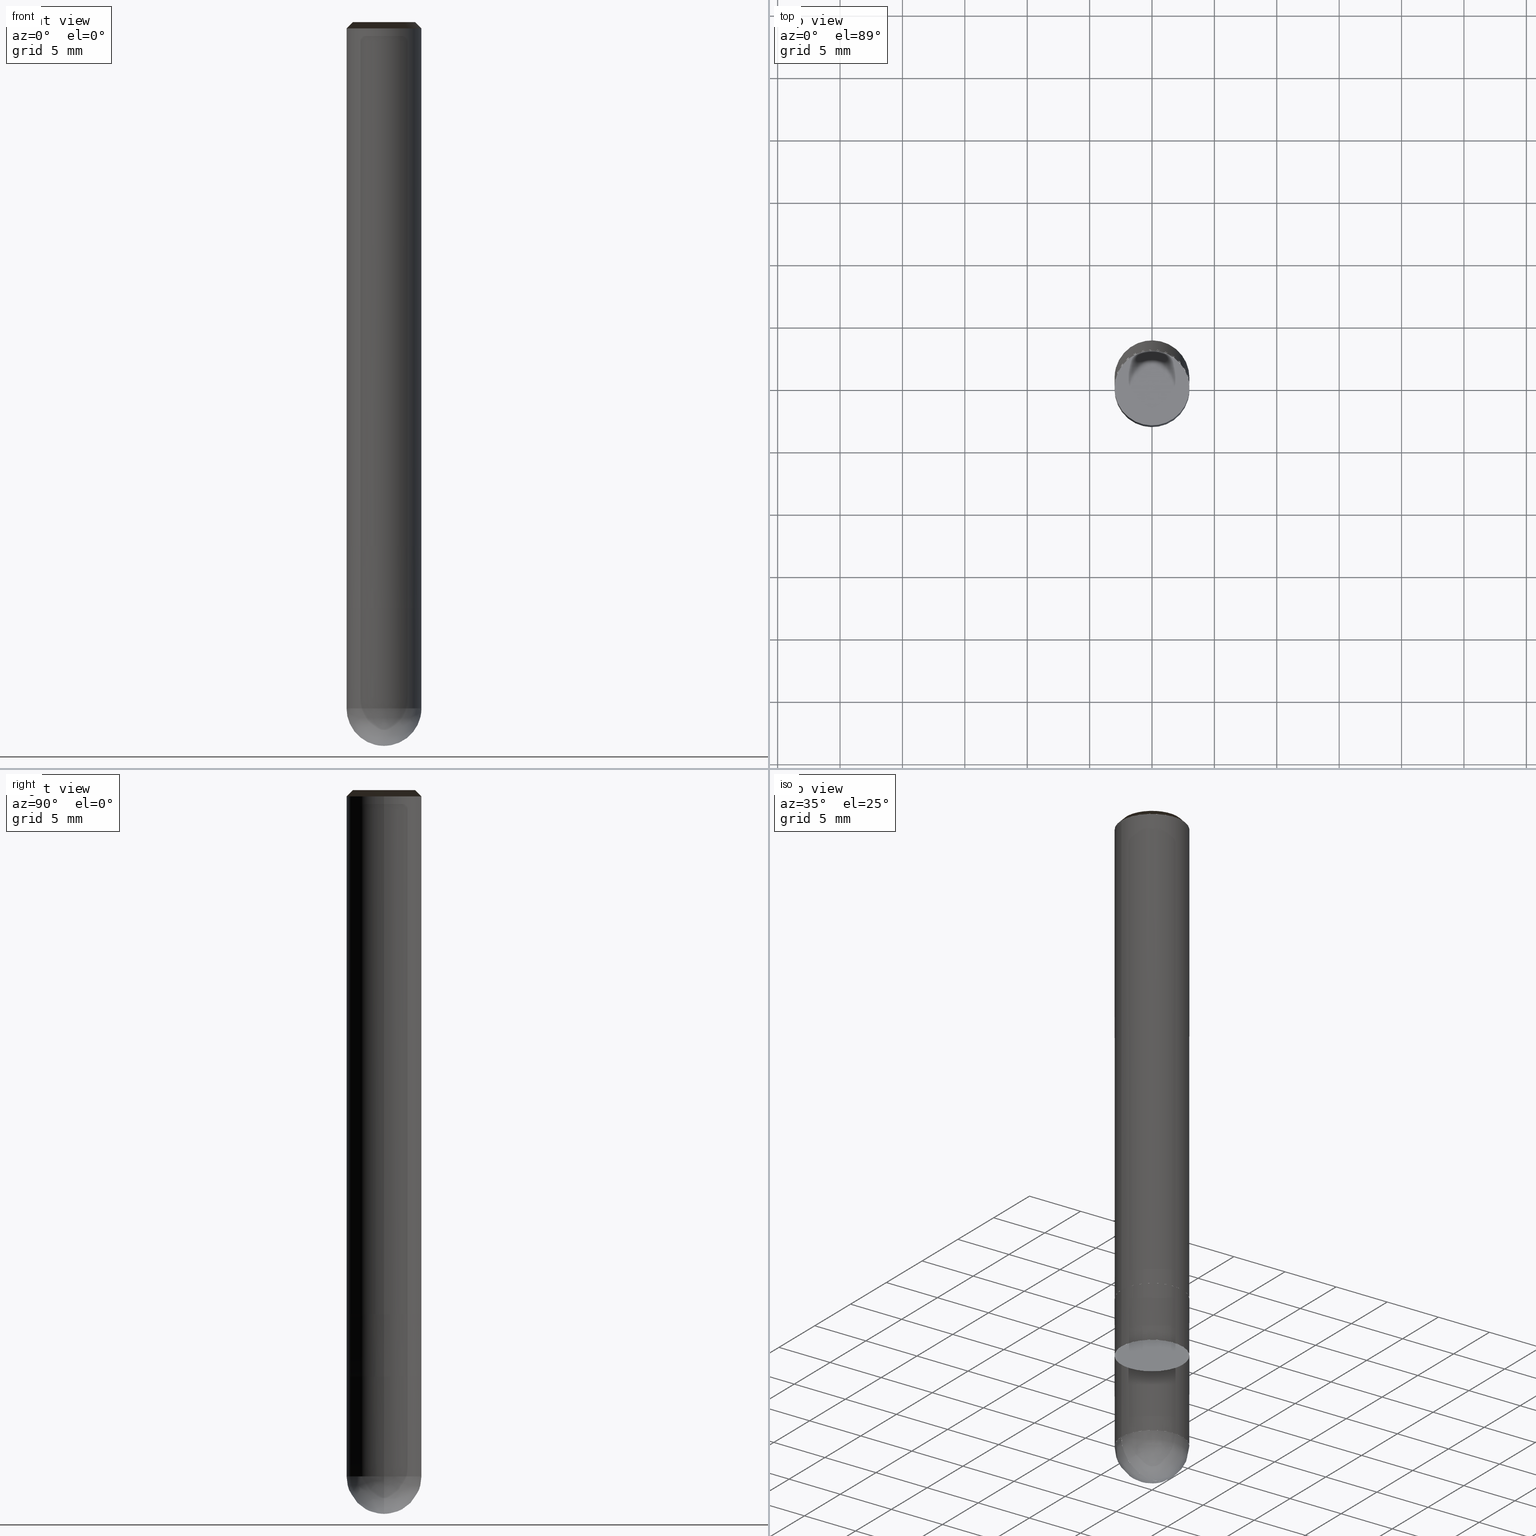
[diagram: canonical four-view strip — front | top / right | iso, engineering-drawing reading convention]
A machine part, canonical four-view strip (front | top / right | iso — engineering-drawing reading convention). The complete STEP part file that produces these views, byte-faithful:
ISO-10303-21;
HEADER;
/* Generated by ISBE GmbH (www.isbe.de) */
/* OPTION: using custom schema-name function */

FILE_DESCRIPTION(
/* description */ (''),
/* implementation_level */ '2;1');

FILE_NAME(
/*name*/ 'Drawing No  1240600   Issue 1',
/*time_stamp*/'2021-9-29T7:46:24',
/*author*/ ('ISBE GmbH'),
/*organization*/ ('ISBE GmbH'),
/*preprocessor_version*/ 'STEP IO v1.0',
/*originating_system*/ '',
/*authorisation*/ '');

FILE_SCHEMA (('AUTOMOTIVE_DESIGN'));
ENDSEC;

DATA;
#10=SHAPE_DEFINITION_REPRESENTATION(#11,#57);
#11=PRODUCT_DEFINITION_SHAPE('Document','',#13);
#12=PRODUCT_DEFINITION_CONTEXT('3D Mechanical Parts',#17,'design');
#13=PRODUCT_DEFINITION('A','First version',#14,#12);
#14=PRODUCT_DEFINITION_FORMATION_WITH_SPECIFIED_SOURCE('A','First version',#19,.MADE.);
#15=PRODUCT_RELATED_PRODUCT_CATEGORY('tool','tool',(#19));
#16=APPLICATION_PROTOCOL_DEFINITION('Draft International Standard', 'automotive_design',1999,#17);
#17=APPLICATION_CONTEXT('data for automotive mechanical design processes');
#18=PRODUCT_CONTEXT('3D Mechanical Parts',#17,'mechanical');
#19=PRODUCT('Document','Document','ISBE converted to STEP',(#18));
#20=(
LENGTH_UNIT()
NAMED_UNIT(*)
SI_UNIT(.MILLI.,.METRE.)
);
#21=(
NAMED_UNIT(*)
PLANE_ANGLE_UNIT()
SI_UNIT($,.RADIAN.)
);
#22=DIMENSIONAL_EXPONENTS(0.,0.,0.,0.,0.,0.,0.);
#23=PLANE_ANGLE_MEASURE_WITH_UNIT(PLANE_ANGLE_MEASURE(0.01745329252),#21);
#24=(
CONVERSION_BASED_UNIT('DEGREES',#23)
NAMED_UNIT(#22)
PLANE_ANGLE_UNIT()
);
#25=(
NAMED_UNIT(*)
SI_UNIT($,.STERADIAN.)
SOLID_ANGLE_UNIT()
);
#26=UNCERTAINTY_MEASURE_WITH_UNIT(LENGTH_MEASURE(0.001),#20, 'DISTANCE_ACCURACY_VALUE', 'Maximum model space distance between geometric entities at asserted connectivities');
#27=(
GEOMETRIC_REPRESENTATION_CONTEXT(3)
GLOBAL_UNCERTAINTY_ASSIGNED_CONTEXT((#26))
GLOBAL_UNIT_ASSIGNED_CONTEXT((#25,#24,#20))
REPRESENTATION_CONTEXT('ID1','3D')
);
#28=CARTESIAN_POINT('',(0.0,0.0,0.0));
#29=DIRECTION('',(1.0,0.0,0.0));
#30=DIRECTION('',(0.0,0.0,1.0));
#31=AXIS2_PLACEMENT_3D('',#28,#30,#29);
#32=CARTESIAN_POINT('',(0.0,0.0,0.0));
#33=DIRECTION('',(1.0,0.0,0.0));
#34=DIRECTION('',(0.0,0.0,1.0));
#35=AXIS2_PLACEMENT_3D('',#32,#34,#33);
#36=CARTESIAN_POINT('',(0.0,0.0,0.0));
#37=DIRECTION('',(1.0,0.0,0.0));
#38=DIRECTION('',(0.0,0.0,1.0));
#39=AXIS2_PLACEMENT_3D('',#36,#38,#37);
#40=CARTESIAN_POINT('',(0.0,0.0,0.0));
#41=DIRECTION('',(0.0,0.0,1.0));
#42=DIRECTION('',(1.0,0.0,0.0));
#43=AXIS2_PLACEMENT_3D('MCS',#40,#42,#41);
#44=CARTESIAN_POINT('',(0.0,0.0,42.0));
#45=DIRECTION('',(0.0,0.0,1.0));
#46=DIRECTION('',(1.0,0.0,0.0));
#47=AXIS2_PLACEMENT_3D('PCS',#44,#46,#45);
#48=CARTESIAN_POINT('',(0.0,0.0,-16.0));
#49=DIRECTION('',(0.0,0.0,1.0));
#50=DIRECTION('',(1.0,0.0,0.0));
#51=AXIS2_PLACEMENT_3D('CIP',#48,#50,#49);
#52=CARTESIAN_POINT('',(0.0,-3.0,-16.0));
#53=DIRECTION('',(0.0,0.0,1.0));
#54=DIRECTION('',(1.0,0.0,0.0));
#55=AXIS2_PLACEMENT_3D('CRP',#52,#54,#53);
#57=SHAPE_REPRESENTATION('Document',(#31,#35,#39,#43,#47,#51,#55),#27);
#58=DIRECTION('',(1.0,0.0,0.0));
#59=DIRECTION('',(0.0,0.0,1.0));
#60=CARTESIAN_POINT('',(-0.029998472069,-0.000302776321,-15.999519102798));
#61=CARTESIAN_POINT('',(-0.029057762313,-0.09165903705,-15.998458648602));
#62=CARTESIAN_POINT('',(-0.027874373817,-0.190178750337,-15.993836178251));
#63=CARTESIAN_POINT('',(-0.026368263177,-0.286859736173,-15.986137338848));
#64=CARTESIAN_POINT('',(-0.024359455378,-0.382857327549,-15.97537004147));
#65=CARTESIAN_POINT('',(-0.021680766138,-0.478308564456,-15.961545350243));
#66=CARTESIAN_POINT('',(-0.018170106177,-0.573187961479,-15.944677470973));
#67=CARTESIAN_POINT('',(-0.013670189157,-0.667422819783,-15.924783736545));
#68=CARTESIAN_POINT('',(-0.008029102456,-0.760921392102,-15.901884589117));
#69=CARTESIAN_POINT('',(-0.001101056359,-0.853582049754,-15.87600355911));
#70=CARTESIAN_POINT('',(0.007252824892,-0.945296830697,-15.847167241032));
#71=CARTESIAN_POINT('',(0.017163709323,-1.035952988519,-15.815405266149));
#72=CARTESIAN_POINT('',(0.028754275985,-1.125433745794,-15.780750272038));
#73=CARTESIAN_POINT('',(0.042137954388,-1.213618715505,-15.743237869047));
#74=CARTESIAN_POINT('',(0.057418190415,-1.300384190555,-15.702906603707));
#75=CARTESIAN_POINT('',(0.074687743744,-1.385603395776,-15.659797919119));
#76=CARTESIAN_POINT('',(0.094028021615,-1.469146750244,-15.61395611237));
#77=CARTESIAN_POINT('',(0.115508453778,-1.550882165421,-15.565428289016));
#78=CARTESIAN_POINT('',(0.139185913541,-1.630675393026,-15.514264314676));
#79=CARTESIAN_POINT('',(0.165104189929,-1.708390430075,-15.460516763791));
#80=CARTESIAN_POINT('',(0.193293515993,-1.78388998451,-15.404240865604));
#81=CARTESIAN_POINT('',(0.223770158332,-1.857036002192,-15.345494447404));
#82=CARTESIAN_POINT('',(0.256536072792,-1.927690254088,-15.284337875107));
#83=CARTESIAN_POINT('',(0.291578631183,-1.995714980966,-15.220833991226));
#84=CARTESIAN_POINT('',(0.328870423631,-2.060973591628,-15.155048050293));
#85=CARTESIAN_POINT('',(0.368369140851,-2.123331409635,-15.08704765181));
#86=CARTESIAN_POINT('',(0.410017540258,-2.182656462494,-15.016902670784));
#87=CARTESIAN_POINT('',(0.453743499332,-2.238820306426,-14.944685185923));
#88=CARTESIAN_POINT('',(0.499460159084,-2.291698879061,-14.870469405576));
#89=CARTESIAN_POINT('',(0.547066159827,-2.341173371754,-14.794331591474));
#90=CARTESIAN_POINT('',(0.596445970713,-2.387131112636,-14.716349980367));
#91=CARTESIAN_POINT('',(0.647470313722,-2.429466451075,-14.636604703632));
#92=CARTESIAN_POINT('',(0.699996681906,-2.468081633862,-14.555177704932));
#93=CARTESIAN_POINT('',(0.753869950797,-2.502887663217,-14.472152656012));
#94=CARTESIAN_POINT('',(0.808923080951,-2.533805126614,-14.387614870723));
#95=CARTESIAN_POINT('',(0.864977908611,-2.560764988432,-14.301651217353));
#96=CARTESIAN_POINT('',(0.921846020504,-2.583709333624,-14.214350029367));
#97=CARTESIAN_POINT('',(0.979329707838,-2.602592053854,-14.125801014638));
#98=CARTESIAN_POINT('',(1.037222993558,-2.617379467004,-14.036095163264));
#99=CARTESIAN_POINT('',(1.095312726072,-2.628050861477,-13.945324654071));
#100=CARTESIAN_POINT('',(1.153379731763,-2.634598957407,-13.853582759893));
#101=CARTESIAN_POINT('',(1.211200017813,-2.637030277681,-13.760963751729));
#102=CARTESIAN_POINT('',(1.268546016174,-2.635365422557,-13.667562801869));
#103=CARTESIAN_POINT('',(1.325187858919,-2.629639242678,-13.573475886104));
#104=CARTESIAN_POINT('',(1.380894674677,-2.619900906332,-13.4787996851));
#105=CARTESIAN_POINT('',(1.435435895526,-2.606213857977,-13.383631485054));
#106=CARTESIAN_POINT('',(1.488582563428,-2.588655666233,-13.288069077723));
#107=CARTESIAN_POINT('',(1.540108625206,-2.567317760771,-13.192210659942));
#108=CARTESIAN_POINT('',(1.589792205091,-2.542305058802,-13.096154732715));
#109=CARTESIAN_POINT('',(1.63741684402,-2.513735483085,-13.0));
#110=CARTESIAN_POINT('',(1.675805230753,-2.488308025261,-12.920245398773));
#111=CARTESIAN_POINT('',(1.713798830574,-2.462294370769,-12.840490797546));
#112=CARTESIAN_POINT('',(1.751388692934,-2.435700647917,-12.760736196319));
#113=CARTESIAN_POINT('',(1.788565962397,-2.408533121665,-12.680981595092));
#114=CARTESIAN_POINT('',(1.825321880726,-2.38079819215,-12.601226993865));
#115=CARTESIAN_POINT('',(1.861647788946,-2.352502393179,-12.521472392638));
#116=CARTESIAN_POINT('',(1.897535129383,-2.323652390689,-12.441717791411));
#117=CARTESIAN_POINT('',(1.932975447684,-2.294254981176,-12.361963190184));
#118=CARTESIAN_POINT('',(1.967960394803,-2.264317090093,-12.282208588957));
#119=CARTESIAN_POINT('',(2.002481728971,-2.233845770222,-12.20245398773));
#120=CARTESIAN_POINT('',(2.036531317636,-2.20284820001,-12.122699386503));
#121=CARTESIAN_POINT('',(2.070101139384,-2.171331681877,-12.042944785276));
#122=CARTESIAN_POINT('',(2.10318328582,-2.139303640498,-11.963190184049));
#123=CARTESIAN_POINT('',(2.135769963439,-2.106771621053,-11.883435582822));
#124=CARTESIAN_POINT('',(2.167853495456,-2.073743287449,-11.803680981595));
#125=CARTESIAN_POINT('',(2.19942632362,-2.040226420515,-11.723926380368));
#126=CARTESIAN_POINT('',(2.230481009991,-2.006228916168,-11.644171779141));
#127=CARTESIAN_POINT('',(2.261010238692,-1.971758783556,-11.564417177914));
#128=CARTESIAN_POINT('',(2.291006817634,-1.936824143166,-11.484662576687));
#129=CARTESIAN_POINT('',(2.320463680211,-1.901433224917,-11.40490797546));
#130=CARTESIAN_POINT('',(2.349373886963,-1.865594366216,-11.325153374233));
#131=CARTESIAN_POINT('',(2.377730627209,-1.829316009997,-11.245398773006));
#132=CARTESIAN_POINT('',(2.405527220658,-1.79260670273,-11.165644171779));
#133=CARTESIAN_POINT('',(2.432757118976,-1.75547509241,-11.085889570552));
#134=CARTESIAN_POINT('',(2.459413907332,-1.717929926517,-11.006134969325));
#135=CARTESIAN_POINT('',(2.485491305908,-1.679980049958,-10.926380368098));
#136=CARTESIAN_POINT('',(2.51098317138,-1.64163440298,-10.846625766871));
#137=CARTESIAN_POINT('',(2.535883498363,-1.602902019068,-10.766871165644));
#138=CARTESIAN_POINT('',(2.560186420827,-1.563792022812,-10.687116564417));
#139=CARTESIAN_POINT('',(2.58388621348,-1.524313627764,-10.60736196319));
#140=CARTESIAN_POINT('',(2.606977293114,-1.48447613426,-10.527607361963));
#141=CARTESIAN_POINT('',(2.629454219923,-1.444288927233,-10.447852760736));
#142=CARTESIAN_POINT('',(2.651311698783,-1.403761474003,-10.368098159509));
#143=CARTESIAN_POINT('',(2.672544580499,-1.362903322046,-10.288343558282));
#144=CARTESIAN_POINT('',(2.693147863021,-1.321724096741,-10.208588957055));
#145=CARTESIAN_POINT('',(2.713116692618,-1.280233499108,-10.128834355828));
#146=CARTESIAN_POINT('',(2.732446365024,-1.23844130352,-10.049079754601));
#147=CARTESIAN_POINT('',(2.751132326548,-1.196357355401,-9.969325153374));
#148=CARTESIAN_POINT('',(2.769170175142,-1.153991568905,-9.889570552147));
#149=CARTESIAN_POINT('',(2.786555661443,-1.111353924581,-9.80981595092));
#150=CARTESIAN_POINT('',(2.803284689769,-1.068454467024,-9.730061349693));
#151=CARTESIAN_POINT('',(2.81935331909,-1.025303302508,-9.650306748466));
#152=CARTESIAN_POINT('',(2.834757763951,-0.981910596601,-9.570552147239));
#153=CARTESIAN_POINT('',(2.849494395366,-0.938286571776,-9.490797546012));
#154=CARTESIAN_POINT('',(2.863559741674,-0.894441505,-9.411042944785));
#155=CARTESIAN_POINT('',(2.876950489353,-0.850385725311,-9.331288343558));
#156=CARTESIAN_POINT('',(2.889663483806,-0.80612961139,-9.251533742331));
#157=CARTESIAN_POINT('',(2.9016957301,-0.76168358911,-9.171779141104));
#158=CARTESIAN_POINT('',(2.913044393674,-0.717058129085,-9.092024539877));
#159=CARTESIAN_POINT('',(2.923706801004,-0.672263744199,-9.01226993865));
#160=CARTESIAN_POINT('',(2.933680440236,-0.627310987133,-8.932515337423));
#161=CARTESIAN_POINT('',(2.942962961776,-0.582210447876,-8.852760736196));
#162=CARTESIAN_POINT('',(2.951552178843,-0.536972751233,-8.773006134969));
#163=CARTESIAN_POINT('',(2.959446067986,-0.49160855432,-8.693251533742));
#164=CARTESIAN_POINT('',(2.96664276956,-0.446128544053,-8.613496932515));
#165=CARTESIAN_POINT('',(2.973140588161,-0.400543434634,-8.533742331288));
#166=CARTESIAN_POINT('',(2.978937993032,-0.354863965021,-8.453987730061));
#167=CARTESIAN_POINT('',(2.984033618417,-0.309100896403,-8.374233128834));
#168=CARTESIAN_POINT('',(2.988426263887,-0.263265009664,-8.294478527607));
#169=CARTESIAN_POINT('',(2.992114894619,-0.217367102841,-8.21472392638));
#170=CARTESIAN_POINT('',(2.995098641646,-0.171417988583,-8.134969325153));
#171=CARTESIAN_POINT('',(2.997376802054,-0.125428491603,-8.055214723926));
#172=CARTESIAN_POINT('',(2.998948839155,-0.079409446124,-7.975460122699));
#173=CARTESIAN_POINT('',(2.999814382605,-0.033371693335,-7.895705521472));
#174=CARTESIAN_POINT('',(2.999973228501,0.012673921173,-7.815950920245));
#175=CARTESIAN_POINT('',(2.999425339421,0.058716549952,-7.736196319018));
#176=CARTESIAN_POINT('',(2.998170844438,0.104745346262,-7.656441717791));
#177=CARTESIAN_POINT('',(2.996210039085,0.150749466618,-7.576687116564));
#178=CARTESIAN_POINT('',(2.993543385291,0.196718073351,-7.496932515337));
#179=CARTESIAN_POINT('',(2.990171511266,0.242640337155,-7.41717791411));
#180=CARTESIAN_POINT('',(2.986095211358,0.288505439645,-7.337423312883));
#181=CARTESIAN_POINT('',(2.981315445864,0.334302575901,-7.257668711656));
#182=CARTESIAN_POINT('',(2.975833340802,0.380020957013,-7.177914110429));
#183=CARTESIAN_POINT('',(2.96965018765,0.425649812625,-7.098159509202));
#184=CARTESIAN_POINT('',(2.962767443038,0.471178393472,-7.018404907975));
#185=CARTESIAN_POINT('',(2.955186728404,0.516595973912,-6.938650306748));
#186=CARTESIAN_POINT('',(2.946909829618,0.561891854452,-6.858895705521));
#187=CARTESIAN_POINT('',(2.937938696555,0.607055364268,-6.779141104294));
#188=CARTESIAN_POINT('',(2.928275442637,0.652075863723,-6.699386503067));
#189=CARTESIAN_POINT('',(2.917922344339,0.696942746866,-6.61963190184));
#190=CARTESIAN_POINT('',(2.906881840647,0.741645443939,-6.539877300613));
#191=CARTESIAN_POINT('',(2.895156532489,0.786173423862,-6.460122699387));
#192=CARTESIAN_POINT('',(2.882749182117,0.830516196713,-6.38036809816));
#193=CARTESIAN_POINT('',(2.869662712461,0.874663316204,-6.300613496933));
#194=CARTESIAN_POINT('',(2.855900206436,0.918604382136,-6.220858895706));
#195=CARTESIAN_POINT('',(2.841464906219,0.962329042856,-6.141104294479));
#196=CARTESIAN_POINT('',(2.826360212486,1.005826997688,-6.061349693252));
#197=CARTESIAN_POINT('',(2.810589683605,1.049087999366,-5.981595092025));
#198=CARTESIAN_POINT('',(2.794157034805,1.092101856445,-5.901840490798));
#199=CARTESIAN_POINT('',(2.777066137296,1.134858435702,-5.822085889571));
#200=CARTESIAN_POINT('',(2.75932101736,1.177347664523,-5.742331288344));
#201=CARTESIAN_POINT('',(2.740925855398,1.219559533278,-5.662576687117));
#202=CARTESIAN_POINT('',(2.721884984952,1.261484097677,-5.58282208589));
#203=CARTESIAN_POINT('',(2.702202891678,1.303111481113,-5.503067484663));
#204=CARTESIAN_POINT('',(2.681884212291,1.344431876989,-5.423312883436));
#205=CARTESIAN_POINT('',(2.660933733475,1.385435551029,-5.343558282209));
#206=CARTESIAN_POINT('',(2.639356390753,1.426112843569,-5.263803680982));
#207=CARTESIAN_POINT('',(2.617157267323,1.466454171836,-5.184049079755));
#208=CARTESIAN_POINT('',(2.594341592866,1.506450032203,-5.104294478528));
#209=CARTESIAN_POINT('',(2.570914742308,1.546091002427,-5.024539877301));
#210=CARTESIAN_POINT('',(0.029998472069,0.000302776321,-15.999519102798));
#211=CARTESIAN_POINT('',(0.029057762313,0.09165903705,-15.998458648602));
#212=CARTESIAN_POINT('',(0.027874373817,0.190178750337,-15.993836178251));
#213=CARTESIAN_POINT('',(0.026368263177,0.286859736173,-15.986137338848));
#214=CARTESIAN_POINT('',(0.024359455378,0.382857327549,-15.97537004147));
#215=CARTESIAN_POINT('',(0.021680766138,0.478308564456,-15.961545350243));
#216=CARTESIAN_POINT('',(0.018170106177,0.573187961479,-15.944677470973));
#217=CARTESIAN_POINT('',(0.013670189157,0.667422819783,-15.924783736545));
#218=CARTESIAN_POINT('',(0.008029102456,0.760921392102,-15.901884589117));
#219=CARTESIAN_POINT('',(0.001101056359,0.853582049754,-15.87600355911));
#220=CARTESIAN_POINT('',(-0.007252824892,0.945296830697,-15.847167241032));
#221=CARTESIAN_POINT('',(-0.017163709323,1.035952988519,-15.815405266149));
#222=CARTESIAN_POINT('',(-0.028754275985,1.125433745794,-15.780750272038));
#223=CARTESIAN_POINT('',(-0.042137954388,1.213618715505,-15.743237869047));
#224=CARTESIAN_POINT('',(-0.057418190415,1.300384190555,-15.702906603707));
#225=CARTESIAN_POINT('',(-0.074687743744,1.385603395776,-15.659797919119));
#226=CARTESIAN_POINT('',(-0.094028021615,1.469146750244,-15.61395611237));
#227=CARTESIAN_POINT('',(-0.115508453778,1.550882165421,-15.565428289016));
#228=CARTESIAN_POINT('',(-0.139185913541,1.630675393026,-15.514264314676));
#229=CARTESIAN_POINT('',(-0.165104189929,1.708390430075,-15.460516763791));
#230=CARTESIAN_POINT('',(-0.193293515993,1.78388998451,-15.404240865604));
#231=CARTESIAN_POINT('',(-0.223770158332,1.857036002192,-15.345494447404));
#232=CARTESIAN_POINT('',(-0.256536072792,1.927690254088,-15.284337875107));
#233=CARTESIAN_POINT('',(-0.291578631183,1.995714980966,-15.220833991226));
#234=CARTESIAN_POINT('',(-0.328870423631,2.060973591628,-15.155048050293));
#235=CARTESIAN_POINT('',(-0.368369140851,2.123331409635,-15.08704765181));
#236=CARTESIAN_POINT('',(-0.410017540258,2.182656462494,-15.016902670784));
#237=CARTESIAN_POINT('',(-0.453743499332,2.238820306426,-14.944685185923));
#238=CARTESIAN_POINT('',(-0.499460159084,2.291698879061,-14.870469405576));
#239=CARTESIAN_POINT('',(-0.547066159827,2.341173371754,-14.794331591474));
#240=CARTESIAN_POINT('',(-0.596445970713,2.387131112636,-14.716349980367));
#241=CARTESIAN_POINT('',(-0.647470313722,2.429466451075,-14.636604703632));
#242=CARTESIAN_POINT('',(-0.699996681906,2.468081633862,-14.555177704932));
#243=CARTESIAN_POINT('',(-0.753869950797,2.502887663217,-14.472152656012));
#244=CARTESIAN_POINT('',(-0.808923080951,2.533805126614,-14.387614870723));
#245=CARTESIAN_POINT('',(-0.86497790861,2.560764988432,-14.301651217353));
#246=CARTESIAN_POINT('',(-0.921846020504,2.583709333624,-14.214350029367));
#247=CARTESIAN_POINT('',(-0.979329707838,2.602592053854,-14.125801014638));
#248=CARTESIAN_POINT('',(-1.037222993558,2.617379467004,-14.036095163264));
#249=CARTESIAN_POINT('',(-1.095312726072,2.628050861477,-13.945324654071));
#250=CARTESIAN_POINT('',(-1.153379731763,2.634598957407,-13.853582759893));
#251=CARTESIAN_POINT('',(-1.211200017813,2.637030277681,-13.760963751729));
#252=CARTESIAN_POINT('',(-1.268546016174,2.635365422557,-13.667562801869));
#253=CARTESIAN_POINT('',(-1.325187858919,2.629639242678,-13.573475886104));
#254=CARTESIAN_POINT('',(-1.380894674677,2.619900906332,-13.4787996851));
#255=CARTESIAN_POINT('',(-1.435435895526,2.606213857977,-13.383631485054));
#256=CARTESIAN_POINT('',(-1.488582563428,2.588655666233,-13.288069077723));
#257=CARTESIAN_POINT('',(-1.540108625206,2.567317760771,-13.192210659942));
#258=CARTESIAN_POINT('',(-1.589792205091,2.542305058802,-13.096154732715));
#259=CARTESIAN_POINT('',(-1.63741684402,2.513735483085,-13.0));
#260=CARTESIAN_POINT('',(-1.675805230753,2.488308025261,-12.920245398773));
#261=CARTESIAN_POINT('',(-1.713798830574,2.462294370769,-12.840490797546));
#262=CARTESIAN_POINT('',(-1.751388692934,2.435700647917,-12.760736196319));
#263=CARTESIAN_POINT('',(-1.788565962397,2.408533121665,-12.680981595092));
#264=CARTESIAN_POINT('',(-1.825321880726,2.38079819215,-12.601226993865));
#265=CARTESIAN_POINT('',(-1.861647788946,2.352502393179,-12.521472392638));
#266=CARTESIAN_POINT('',(-1.897535129383,2.323652390689,-12.441717791411));
#267=CARTESIAN_POINT('',(-1.932975447684,2.294254981176,-12.361963190184));
#268=CARTESIAN_POINT('',(-1.967960394803,2.264317090093,-12.282208588957));
#269=CARTESIAN_POINT('',(-2.002481728971,2.233845770222,-12.20245398773));
#270=CARTESIAN_POINT('',(-2.036531317636,2.20284820001,-12.122699386503));
#271=CARTESIAN_POINT('',(-2.070101139384,2.171331681877,-12.042944785276));
#272=CARTESIAN_POINT('',(-2.10318328582,2.139303640498,-11.963190184049));
#273=CARTESIAN_POINT('',(-2.135769963439,2.106771621053,-11.883435582822));
#274=CARTESIAN_POINT('',(-2.167853495456,2.073743287449,-11.803680981595));
#275=CARTESIAN_POINT('',(-2.19942632362,2.040226420515,-11.723926380368));
#276=CARTESIAN_POINT('',(-2.230481009991,2.006228916168,-11.644171779141));
#277=CARTESIAN_POINT('',(-2.261010238692,1.971758783556,-11.564417177914));
#278=CARTESIAN_POINT('',(-2.291006817634,1.936824143166,-11.484662576687));
#279=CARTESIAN_POINT('',(-2.320463680211,1.901433224917,-11.40490797546));
#280=CARTESIAN_POINT('',(-2.349373886963,1.865594366216,-11.325153374233));
#281=CARTESIAN_POINT('',(-2.377730627209,1.829316009997,-11.245398773006));
#282=CARTESIAN_POINT('',(-2.405527220658,1.79260670273,-11.165644171779));
#283=CARTESIAN_POINT('',(-2.432757118976,1.75547509241,-11.085889570552));
#284=CARTESIAN_POINT('',(-2.459413907332,1.717929926517,-11.006134969325));
#285=CARTESIAN_POINT('',(-2.485491305908,1.679980049958,-10.926380368098));
#286=CARTESIAN_POINT('',(-2.51098317138,1.64163440298,-10.846625766871));
#287=CARTESIAN_POINT('',(-2.535883498363,1.602902019068,-10.766871165644));
#288=CARTESIAN_POINT('',(-2.560186420827,1.563792022812,-10.687116564417));
#289=CARTESIAN_POINT('',(-2.58388621348,1.524313627764,-10.60736196319));
#290=CARTESIAN_POINT('',(-2.606977293114,1.48447613426,-10.527607361963));
#291=CARTESIAN_POINT('',(-2.629454219923,1.444288927233,-10.447852760736));
#292=CARTESIAN_POINT('',(-2.651311698783,1.403761474004,-10.368098159509));
#293=CARTESIAN_POINT('',(-2.672544580499,1.362903322046,-10.288343558282));
#294=CARTESIAN_POINT('',(-2.693147863021,1.321724096741,-10.208588957055));
#295=CARTESIAN_POINT('',(-2.713116692618,1.280233499108,-10.128834355828));
#296=CARTESIAN_POINT('',(-2.732446365024,1.238441303521,-10.049079754601));
#297=CARTESIAN_POINT('',(-2.751132326548,1.196357355401,-9.969325153374));
#298=CARTESIAN_POINT('',(-2.769170175142,1.153991568905,-9.889570552147));
#299=CARTESIAN_POINT('',(-2.786555661443,1.111353924581,-9.80981595092));
#300=CARTESIAN_POINT('',(-2.803284689769,1.068454467024,-9.730061349693));
#301=CARTESIAN_POINT('',(-2.81935331909,1.025303302508,-9.650306748466));
#302=CARTESIAN_POINT('',(-2.834757763951,0.981910596601,-9.570552147239));
#303=CARTESIAN_POINT('',(-2.849494395366,0.938286571776,-9.490797546012));
#304=CARTESIAN_POINT('',(-2.863559741674,0.894441505,-9.411042944785));
#305=CARTESIAN_POINT('',(-2.876950489353,0.850385725311,-9.331288343558));
#306=CARTESIAN_POINT('',(-2.889663483806,0.80612961139,-9.251533742331));
#307=CARTESIAN_POINT('',(-2.9016957301,0.76168358911,-9.171779141104));
#308=CARTESIAN_POINT('',(-2.913044393674,0.717058129085,-9.092024539877));
#309=CARTESIAN_POINT('',(-2.923706801004,0.672263744199,-9.01226993865));
#310=CARTESIAN_POINT('',(-2.933680440236,0.627310987133,-8.932515337423));
#311=CARTESIAN_POINT('',(-2.942962961776,0.582210447876,-8.852760736196));
#312=CARTESIAN_POINT('',(-2.951552178843,0.536972751233,-8.773006134969));
#313=CARTESIAN_POINT('',(-2.959446067986,0.49160855432,-8.693251533742));
#314=CARTESIAN_POINT('',(-2.96664276956,0.446128544053,-8.613496932515));
#315=CARTESIAN_POINT('',(-2.973140588161,0.400543434634,-8.533742331288));
#316=CARTESIAN_POINT('',(-2.978937993032,0.354863965021,-8.453987730061));
#317=CARTESIAN_POINT('',(-2.984033618417,0.309100896403,-8.374233128834));
#318=CARTESIAN_POINT('',(-2.988426263887,0.263265009664,-8.294478527607));
#319=CARTESIAN_POINT('',(-2.992114894619,0.217367102841,-8.21472392638));
#320=CARTESIAN_POINT('',(-2.995098641646,0.171417988583,-8.134969325153));
#321=CARTESIAN_POINT('',(-2.997376802054,0.125428491603,-8.055214723926));
#322=CARTESIAN_POINT('',(-2.998948839155,0.079409446124,-7.975460122699));
#323=CARTESIAN_POINT('',(-2.999814382605,0.033371693335,-7.895705521472));
#324=CARTESIAN_POINT('',(-2.999973228501,-0.012673921173,-7.815950920245));
#325=CARTESIAN_POINT('',(-2.999425339421,-0.058716549952,-7.736196319018));
#326=CARTESIAN_POINT('',(-2.998170844438,-0.104745346262,-7.656441717791));
#327=CARTESIAN_POINT('',(-2.996210039085,-0.150749466618,-7.576687116564));
#328=CARTESIAN_POINT('',(-2.993543385291,-0.196718073351,-7.496932515337));
#329=CARTESIAN_POINT('',(-2.990171511266,-0.242640337155,-7.41717791411));
#330=CARTESIAN_POINT('',(-2.986095211358,-0.288505439645,-7.337423312883));
#331=CARTESIAN_POINT('',(-2.981315445864,-0.334302575901,-7.257668711656));
#332=CARTESIAN_POINT('',(-2.975833340802,-0.380020957013,-7.177914110429));
#333=CARTESIAN_POINT('',(-2.96965018765,-0.425649812625,-7.098159509202));
#334=CARTESIAN_POINT('',(-2.962767443038,-0.471178393472,-7.018404907975));
#335=CARTESIAN_POINT('',(-2.955186728404,-0.516595973912,-6.938650306748));
#336=CARTESIAN_POINT('',(-2.946909829618,-0.561891854452,-6.858895705521));
#337=CARTESIAN_POINT('',(-2.937938696555,-0.607055364268,-6.779141104294));
#338=CARTESIAN_POINT('',(-2.928275442637,-0.652075863723,-6.699386503067));
#339=CARTESIAN_POINT('',(-2.917922344339,-0.696942746866,-6.61963190184));
#340=CARTESIAN_POINT('',(-2.906881840647,-0.741645443939,-6.539877300613));
#341=CARTESIAN_POINT('',(-2.895156532489,-0.786173423862,-6.460122699387));
#342=CARTESIAN_POINT('',(-2.882749182117,-0.830516196713,-6.38036809816));
#343=CARTESIAN_POINT('',(-2.869662712461,-0.874663316204,-6.300613496933));
#344=CARTESIAN_POINT('',(-2.855900206436,-0.918604382136,-6.220858895706));
#345=CARTESIAN_POINT('',(-2.841464906219,-0.962329042856,-6.141104294479));
#346=CARTESIAN_POINT('',(-2.826360212486,-1.005826997688,-6.061349693252));
#347=CARTESIAN_POINT('',(-2.810589683605,-1.049087999366,-5.981595092025));
#348=CARTESIAN_POINT('',(-2.794157034805,-1.092101856445,-5.901840490798));
#349=CARTESIAN_POINT('',(-2.777066137296,-1.134858435702,-5.822085889571));
#350=CARTESIAN_POINT('',(-2.75932101736,-1.177347664523,-5.742331288344));
#351=CARTESIAN_POINT('',(-2.740925855398,-1.219559533278,-5.662576687117));
#352=CARTESIAN_POINT('',(-2.721884984952,-1.261484097677,-5.58282208589));
#353=CARTESIAN_POINT('',(-2.702202891678,-1.303111481113,-5.503067484663));
#354=CARTESIAN_POINT('',(-2.681884212291,-1.344431876989,-5.423312883436));
#355=CARTESIAN_POINT('',(-2.660933733475,-1.385435551029,-5.343558282209));
#356=CARTESIAN_POINT('',(-2.639356390753,-1.426112843569,-5.263803680982));
#357=CARTESIAN_POINT('',(-2.617157267323,-1.466454171836,-5.184049079755));
#358=CARTESIAN_POINT('',(-2.594341592866,-1.506450032203,-5.104294478528));
#359=CARTESIAN_POINT('',(-2.570914742308,-1.546091002427,-5.024539877301));
#360=CARTESIAN_POINT('',(0.0,0.0,-16.0));
#361=CARTESIAN_POINT('',(3.0,0.0,-16.0));
#362=CARTESIAN_POINT('',(3.0,3.0,-16.0));
#363=CARTESIAN_POINT('',(0.0,3.0,-16.0));
#364=CARTESIAN_POINT('',(-3.0,3.0,-16.0));
#365=CARTESIAN_POINT('',(-3.0,0.0,-16.0));
#366=CARTESIAN_POINT('',(3.0,0.0,-13.0));
#367=CARTESIAN_POINT('',(3.0,3.0,-13.0));
#368=CARTESIAN_POINT('',(0.0,3.0,-13.0));
#369=CARTESIAN_POINT('',(-3.0,3.0,-13.0));
#370=CARTESIAN_POINT('',(-3.0,0.0,-13.0));
#371=CARTESIAN_POINT('',(3.0,0.0,-5.0));
#372=CARTESIAN_POINT('',(3.0,3.0,-5.0));
#373=CARTESIAN_POINT('',(0.0,3.0,-5.0));
#374=CARTESIAN_POINT('',(-3.0,3.0,-5.0));
#375=CARTESIAN_POINT('',(-3.0,0.0,-5.0));
#376=CARTESIAN_POINT('',(0.0,0.0,-5.0));
#377=CARTESIAN_POINT('',(-3.0,-3.0,-16.0));
#378=CARTESIAN_POINT('',(0.0,-3.0,-16.0));
#379=CARTESIAN_POINT('',(3.0,-3.0,-16.0));
#380=CARTESIAN_POINT('',(-3.0,-3.0,-13.0));
#381=CARTESIAN_POINT('',(0.0,-3.0,-13.0));
#382=CARTESIAN_POINT('',(3.0,-3.0,-13.0));
#383=CARTESIAN_POINT('',(-3.0,-3.0,-5.0));
#384=CARTESIAN_POINT('',(0.0,-3.0,-5.0));
#385=CARTESIAN_POINT('',(3.0,-3.0,-5.0));
#386=CARTESIAN_POINT('',(3.0,0.0,0.0));
#387=CARTESIAN_POINT('',(3.0,3.0,0.0));
#388=CARTESIAN_POINT('',(0.0,3.0,0.0));
#389=CARTESIAN_POINT('',(-3.0,3.0,0.0));
#390=CARTESIAN_POINT('',(-3.0,0.0,0.0));
#391=CARTESIAN_POINT('',(3.0,0.0,41.5));
#392=CARTESIAN_POINT('',(3.0,3.0,41.5));
#393=CARTESIAN_POINT('',(0.0,3.0,41.5));
#394=CARTESIAN_POINT('',(-3.0,3.0,41.5));
#395=CARTESIAN_POINT('',(-3.0,0.0,41.5));
#396=CARTESIAN_POINT('',(2.5,0.0,42.0));
#397=CARTESIAN_POINT('',(2.5,2.5,42.0));
#398=CARTESIAN_POINT('',(0.0,2.5,42.0));
#399=CARTESIAN_POINT('',(-2.5,2.5,42.0));
#400=CARTESIAN_POINT('',(-2.5,0.0,42.0));
#401=CARTESIAN_POINT('',(0.0,0.0,42.0));
#402=CARTESIAN_POINT('',(-3.0,-3.0,0.0));
#403=CARTESIAN_POINT('',(0.0,-3.0,0.0));
#404=CARTESIAN_POINT('',(3.0,-3.0,0.0));
#405=CARTESIAN_POINT('',(-3.0,-3.0,41.5));
#406=CARTESIAN_POINT('',(0.0,-3.0,41.5));
#407=CARTESIAN_POINT('',(3.0,-3.0,41.5));
#408=CARTESIAN_POINT('',(-2.5,-2.5,42.0));
#409=CARTESIAN_POINT('',(0.0,-2.5,42.0));
#410=CARTESIAN_POINT('',(2.5,-2.5,42.0));
#411=(
BOUNDED_CURVE()
B_SPLINE_CURVE(1,(#60,#61,#62,#63,#64,#65,#66,#67,#68,#69,#70,#71,#72,#73,#74,#75,#76,#77,#78,#79,#80,#81,#82,#83,#84,#85,#86,#87,#88,#89,#90,#91,#92,#93,#94,#95,#96,#97,#98,#99,#100,#101,#102,#103,#104,#105,#106,#107,#108,#109,#110,#111,#112,#113,#114,#115,#116,#117,#118,#119,#120,#121,#122,#123,#124,#125,#126,#127,#128,#129,#130,#131,#132,#133,#134,#135,#136,#137,#138,#139,#140,#141,#142,#143,#144,#145,#146,#147,#148,#149,#150,#151,#152,#153,#154,#155,#156,#157,#158,#159,#160,#161,#162,#163,#164,#165,#166,#167,#168,#169,#170,#171,#172,#173,#174,#175,#176,#177,#178,#179,#180,#181,#182,#183,#184,#185,#186,#187,#188,#189,#190,#191,#192,#193,#194,#195,#196,#197,#198,#199,#200,#201,#202,#203,#204,#205,#206,#207,#208,#209),.UNSPECIFIED.,.F.,.F.)
B_SPLINE_CURVE_WITH_KNOTS((2,1,1,1,1,1,1,1,1,1,1,1,1,1,1,1,1,1,1,1,1,1,1,1,1,1,1,1,1,1,1,1,1,1,1,1,1,1,1,1,1,1,1,1,1,1,1,1,1,1,1,1,1,1,1,1,1,1,1,1,1,1,1,1,1,1,1,1,1,1,1,1,1,1,1,1,1,1,1,1,1,1,1,1,1,1,1,1,1,1,1,1,1,1,1,1,1,1,1,1,1,1,1,1,1,1,1,1,1,1,1,1,1,1,1,1,1,1,1,1,1,1,1,1,1,1,1,1,1,1,1,1,1,1,1,1,1,1,1,1,1,1,1,1,1,1,1,1,1,2),
(0.0,0.006430679259,0.013372895873,0.020199933588,0.027000345566,0.033791182134,0.040578265975,0.04736435287,0.054151154161,0.060940016095,0.067732196775,0.07452899473,0.081331813148,0.088142191906,0.094961821064,0.101792542255,0.10863634124,0.115495333526,0.122371744277,0.129267883458,0.136186117066,0.143128835204,0.150098417826,0.157097198916,0.164127429923,0.171191243237,0.178290616453,0.185427338163,0.192602975906,0.199818846883,0.207075991912,0.214375153029,0.221716755062,0.22910089136,0.236527313841,0.243995427368,0.251504288444,0.259052608117,0.26663875895,0.274260785853,0.281916420554,0.289603099433,0.297317984454,0.305057986889,0.31281979354,0.320599895134,0.328394616601,0.336200148908,0.34401258214,0.35182793953,0.358309660135,0.36479138074,0.371273101344,0.377754821949,0.384236542554,0.390718263158,0.397199983763,0.403681704368,0.410163424973,0.416645145577,0.423126866182,0.429608586787,0.436090307391,0.442572027996,0.449053748601,0.455535469205,0.46201718981,0.468498910415,0.47498063102,0.481462351624,0.487944072229,0.494425792834,0.500907513438,0.507389234043,0.513870954648,0.520352675252,0.526834395857,0.533316116462,0.539797837067,0.546279557671,0.552761278276,0.559242998881,0.565724719485,0.57220644009,0.578688160695,0.585169881299,0.591651601904,0.598133322509,0.604615043113,0.611096763718,0.617578484323,0.624060204928,0.630541925532,0.637023646137,0.643505366742,0.649987087346,0.656468807951,0.662950528556,0.66943224916,0.675913969765,0.68239569037,0.688877410975,0.695359131579,0.701840852184,0.708322572789,0.714804293393,0.721286013998,0.727767734603,0.734249455207,0.740731175812,0.747212896417,0.753694617022,0.760176337626,0.766658058231,0.773139778836,0.77962149944,0.786103220045,0.79258494065,0.799066661254,0.805548381859,0.812030102464,0.818511823068,0.824993543673,0.831475264278,0.837956984883,0.844438705487,0.850920426092,0.857402146697,0.863883867301,0.870365587906,0.876847308511,0.883329029115,0.88981074972,0.896292470325,0.90277419093,0.909255911534,0.915737632139,0.922219352744,0.928701073348,0.935182793953,0.941664514558,0.948146235162,0.954627955767,0.961109676372,0.967591396977,0.974073117581,0.980554838186,0.987036558791,0.993518279395,1.0),.UNSPECIFIED.)
CURVE()
GEOMETRIC_REPRESENTATION_ITEM()
RATIONAL_B_SPLINE_CURVE((1.0,1.0,1.0,1.0,1.0,1.0,1.0,1.0,1.0,1.0,1.0,1.0,1.0,1.0,1.0,1.0,1.0,1.0,1.0,1.0,1.0,1.0,1.0,1.0,1.0,1.0,1.0,1.0,1.0,1.0,1.0,1.0,1.0,1.0,1.0,1.0,1.0,1.0,1.0,1.0,1.0,1.0,1.0,1.0,1.0,1.0,1.0,1.0,1.0,1.0,1.0,1.0,1.0,1.0,1.0,1.0,1.0,1.0,1.0,1.0,1.0,1.0,1.0,1.0,1.0,1.0,1.0,1.0,1.0,1.0,1.0,1.0,1.0,1.0,1.0,1.0,1.0,1.0,1.0,1.0,1.0,1.0,1.0,1.0,1.0,1.0,1.0,1.0,1.0,1.0,1.0,1.0,1.0,1.0,1.0,1.0,1.0,1.0,1.0,1.0,1.0,1.0,1.0,1.0,1.0,1.0,1.0,1.0,1.0,1.0,1.0,1.0,1.0,1.0,1.0,1.0,1.0,1.0,1.0,1.0,1.0,1.0,1.0,1.0,1.0,1.0,1.0,1.0,1.0,1.0,1.0,1.0,1.0,1.0,1.0,1.0,1.0,1.0,1.0,1.0,1.0,1.0,1.0,1.0,1.0,1.0,1.0,1.0,1.0,1.0))
REPRESENTATION_ITEM('')
);
#412=(
BOUNDED_CURVE()
B_SPLINE_CURVE(1,(#210,#211,#212,#213,#214,#215,#216,#217,#218,#219,#220,#221,#222,#223,#224,#225,#226,#227,#228,#229,#230,#231,#232,#233,#234,#235,#236,#237,#238,#239,#240,#241,#242,#243,#244,#245,#246,#247,#248,#249,#250,#251,#252,#253,#254,#255,#256,#257,#258,#259,#260,#261,#262,#263,#264,#265,#266,#267,#268,#269,#270,#271,#272,#273,#274,#275,#276,#277,#278,#279,#280,#281,#282,#283,#284,#285,#286,#287,#288,#289,#290,#291,#292,#293,#294,#295,#296,#297,#298,#299,#300,#301,#302,#303,#304,#305,#306,#307,#308,#309,#310,#311,#312,#313,#314,#315,#316,#317,#318,#319,#320,#321,#322,#323,#324,#325,#326,#327,#328,#329,#330,#331,#332,#333,#334,#335,#336,#337,#338,#339,#340,#341,#342,#343,#344,#345,#346,#347,#348,#349,#350,#351,#352,#353,#354,#355,#356,#357,#358,#359),.UNSPECIFIED.,.F.,.F.)
B_SPLINE_CURVE_WITH_KNOTS((2,1,1,1,1,1,1,1,1,1,1,1,1,1,1,1,1,1,1,1,1,1,1,1,1,1,1,1,1,1,1,1,1,1,1,1,1,1,1,1,1,1,1,1,1,1,1,1,1,1,1,1,1,1,1,1,1,1,1,1,1,1,1,1,1,1,1,1,1,1,1,1,1,1,1,1,1,1,1,1,1,1,1,1,1,1,1,1,1,1,1,1,1,1,1,1,1,1,1,1,1,1,1,1,1,1,1,1,1,1,1,1,1,1,1,1,1,1,1,1,1,1,1,1,1,1,1,1,1,1,1,1,1,1,1,1,1,1,1,1,1,1,1,1,1,1,1,1,1,2),
(0.0,0.006430679259,0.013372895873,0.020199933588,0.027000345566,0.033791182134,0.040578265975,0.04736435287,0.054151154161,0.060940016095,0.067732196775,0.07452899473,0.081331813148,0.088142191906,0.094961821064,0.101792542255,0.10863634124,0.115495333526,0.122371744277,0.129267883458,0.136186117066,0.143128835204,0.150098417826,0.157097198916,0.164127429923,0.171191243237,0.178290616453,0.185427338163,0.192602975906,0.199818846883,0.207075991912,0.214375153029,0.221716755062,0.22910089136,0.236527313841,0.243995427368,0.251504288444,0.259052608117,0.26663875895,0.274260785853,0.281916420554,0.289603099433,0.297317984454,0.305057986889,0.31281979354,0.320599895134,0.328394616601,0.336200148908,0.34401258214,0.35182793953,0.358309660135,0.36479138074,0.371273101344,0.377754821949,0.384236542554,0.390718263158,0.397199983763,0.403681704368,0.410163424973,0.416645145577,0.423126866182,0.429608586787,0.436090307391,0.442572027996,0.449053748601,0.455535469205,0.46201718981,0.468498910415,0.47498063102,0.481462351624,0.487944072229,0.494425792834,0.500907513438,0.507389234043,0.513870954648,0.520352675252,0.526834395857,0.533316116462,0.539797837067,0.546279557671,0.552761278276,0.559242998881,0.565724719485,0.57220644009,0.578688160695,0.585169881299,0.591651601904,0.598133322509,0.604615043113,0.611096763718,0.617578484323,0.624060204928,0.630541925532,0.637023646137,0.643505366742,0.649987087346,0.656468807951,0.662950528556,0.66943224916,0.675913969765,0.68239569037,0.688877410975,0.695359131579,0.701840852184,0.708322572789,0.714804293393,0.721286013998,0.727767734603,0.734249455207,0.740731175812,0.747212896417,0.753694617022,0.760176337626,0.766658058231,0.773139778836,0.77962149944,0.786103220045,0.79258494065,0.799066661254,0.805548381859,0.812030102464,0.818511823068,0.824993543673,0.831475264278,0.837956984883,0.844438705487,0.850920426092,0.857402146697,0.863883867301,0.870365587906,0.876847308511,0.883329029115,0.88981074972,0.896292470325,0.90277419093,0.909255911534,0.915737632139,0.922219352744,0.928701073348,0.935182793953,0.941664514558,0.948146235162,0.954627955767,0.961109676372,0.967591396977,0.974073117581,0.980554838186,0.987036558791,0.993518279395,1.0),.UNSPECIFIED.)
CURVE()
GEOMETRIC_REPRESENTATION_ITEM()
RATIONAL_B_SPLINE_CURVE((1.0,1.0,1.0,1.0,1.0,1.0,1.0,1.0,1.0,1.0,1.0,1.0,1.0,1.0,1.0,1.0,1.0,1.0,1.0,1.0,1.0,1.0,1.0,1.0,1.0,1.0,1.0,1.0,1.0,1.0,1.0,1.0,1.0,1.0,1.0,1.0,1.0,1.0,1.0,1.0,1.0,1.0,1.0,1.0,1.0,1.0,1.0,1.0,1.0,1.0,1.0,1.0,1.0,1.0,1.0,1.0,1.0,1.0,1.0,1.0,1.0,1.0,1.0,1.0,1.0,1.0,1.0,1.0,1.0,1.0,1.0,1.0,1.0,1.0,1.0,1.0,1.0,1.0,1.0,1.0,1.0,1.0,1.0,1.0,1.0,1.0,1.0,1.0,1.0,1.0,1.0,1.0,1.0,1.0,1.0,1.0,1.0,1.0,1.0,1.0,1.0,1.0,1.0,1.0,1.0,1.0,1.0,1.0,1.0,1.0,1.0,1.0,1.0,1.0,1.0,1.0,1.0,1.0,1.0,1.0,1.0,1.0,1.0,1.0,1.0,1.0,1.0,1.0,1.0,1.0,1.0,1.0,1.0,1.0,1.0,1.0,1.0,1.0,1.0,1.0,1.0,1.0,1.0,1.0,1.0,1.0,1.0,1.0,1.0,1.0))
REPRESENTATION_ITEM('')
);
#413=SHAPE_REPRESENTATION_RELATIONSHIP('','',#57,#414);
#414=GEOMETRICALLY_BOUNDED_WIREFRAME_SHAPE_REPRESENTATION('Curves',(#415,#31),#27);
#415=GEOMETRIC_CURVE_SET('CurveSet',(#411,#412));
#416=(
BOUNDED_SURFACE()
B_SPLINE_SURFACE(2,2,(
(#360,#360,#360,#360,#360),
(#361,#362,#363,#364,#365),
(#366,#367,#368,#369,#370)
), .UNSPECIFIED.,.F.,.F.,.F.)
B_SPLINE_SURFACE_WITH_KNOTS((3,3),(3,2,3),(
0.0,1.0),(
0.0,0.5,1.0), .UNSPECIFIED.)
GEOMETRIC_REPRESENTATION_ITEM()
RATIONAL_B_SPLINE_SURFACE(((1.0,0.707106781187,1.0,0.707106781187,1.0),
(0.707106781187,0.5,0.707106781187,0.5,0.707106781187),
(1.0,0.707106781187,1.0,0.707106781187,1.0)
))
REPRESENTATION_ITEM('')
SURFACE()
);
#417=(
BOUNDED_CURVE()
B_SPLINE_CURVE(2,(#370,#365,#360),.UNSPECIFIED.,.F.,.F.)
B_SPLINE_CURVE_WITH_KNOTS((3,3),
(0.0,1.0),.UNSPECIFIED.)
CURVE()
GEOMETRIC_REPRESENTATION_ITEM()
RATIONAL_B_SPLINE_CURVE((1.0,0.707106781187,1.0))
REPRESENTATION_ITEM('')
);
#418=(
BOUNDED_CURVE()
B_SPLINE_CURVE(2,(#360,#361,#366),.UNSPECIFIED.,.F.,.F.)
B_SPLINE_CURVE_WITH_KNOTS((3,3),
(0.0,1.0),.UNSPECIFIED.)
CURVE()
GEOMETRIC_REPRESENTATION_ITEM()
RATIONAL_B_SPLINE_CURVE((1.0,0.707106781187,1.0))
REPRESENTATION_ITEM('')
);
#419=(
BOUNDED_CURVE()
B_SPLINE_CURVE(2,(#366,#367,#368,#369,#370),.UNSPECIFIED.,.F.,.F.)
B_SPLINE_CURVE_WITH_KNOTS((3,2,3),
(0.0,0.5,1.0),.UNSPECIFIED.)
CURVE()
GEOMETRIC_REPRESENTATION_ITEM()
RATIONAL_B_SPLINE_CURVE((1.0,0.707106781187,1.0,0.707106781187,1.0))
REPRESENTATION_ITEM('')
);
#420=VERTEX_POINT('',#360);
#421=VERTEX_POINT('',#366);
#422=VERTEX_POINT('',#370);
#423=EDGE_CURVE('',#422,#420,#417,.T.);
#424=EDGE_CURVE('',#420,#421,#418,.T.);
#425=EDGE_CURVE('',#421,#422,#419,.T.);
#426=ORIENTED_EDGE('',*,*,#423,.T.);
#427=ORIENTED_EDGE('',*,*,#424,.T.);
#428=ORIENTED_EDGE('',*,*,#425,.T.);
#429=EDGE_LOOP('',(#426,#427,#428));
#430=FACE_OUTER_BOUND('',#429,.T.);
#431=ADVANCED_FACE('',(#430),#416,.T.);
#432=(
BOUNDED_SURFACE()
B_SPLINE_SURFACE(1,2,(
(#366,#367,#368,#369,#370),
(#371,#372,#373,#374,#375)
), .UNSPECIFIED.,.F.,.F.,.F.)
B_SPLINE_SURFACE_WITH_KNOTS((2,2),(3,2,3),(
0.0,1.0),(
0.0,0.5,1.0), .UNSPECIFIED.)
GEOMETRIC_REPRESENTATION_ITEM()
RATIONAL_B_SPLINE_SURFACE(((1.0,0.707106781187,1.0,0.707106781187,1.0),
(1.0,0.707106781187,1.0,0.707106781187,1.0)
))
REPRESENTATION_ITEM('')
SURFACE()
);
#433=(
BOUNDED_CURVE()
B_SPLINE_CURVE(2,(#370,#369,#368,#367,#366),.UNSPECIFIED.,.F.,.F.)
B_SPLINE_CURVE_WITH_KNOTS((3,2,3),
(0.0,0.5,1.0),.UNSPECIFIED.)
CURVE()
GEOMETRIC_REPRESENTATION_ITEM()
RATIONAL_B_SPLINE_CURVE((1.0,0.707106781187,1.0,0.707106781187,1.0))
REPRESENTATION_ITEM('')
);
#434=(
BOUNDED_CURVE()
B_SPLINE_CURVE(1,(#366,#371),.UNSPECIFIED.,.F.,.F.)
B_SPLINE_CURVE_WITH_KNOTS((2,2),
(0.0,1.0),.UNSPECIFIED.)
CURVE()
GEOMETRIC_REPRESENTATION_ITEM()
RATIONAL_B_SPLINE_CURVE((1.0,1.0))
REPRESENTATION_ITEM('')
);
#435=(
BOUNDED_CURVE()
B_SPLINE_CURVE(2,(#371,#372,#373,#374,#375),.UNSPECIFIED.,.F.,.F.)
B_SPLINE_CURVE_WITH_KNOTS((3,2,3),
(0.0,0.5,1.0),.UNSPECIFIED.)
CURVE()
GEOMETRIC_REPRESENTATION_ITEM()
RATIONAL_B_SPLINE_CURVE((1.0,0.707106781187,1.0,0.707106781187,1.0))
REPRESENTATION_ITEM('')
);
#436=(
BOUNDED_CURVE()
B_SPLINE_CURVE(1,(#375,#370),.UNSPECIFIED.,.F.,.F.)
B_SPLINE_CURVE_WITH_KNOTS((2,2),
(0.0,1.0),.UNSPECIFIED.)
CURVE()
GEOMETRIC_REPRESENTATION_ITEM()
RATIONAL_B_SPLINE_CURVE((1.0,1.0))
REPRESENTATION_ITEM('')
);
#437=VERTEX_POINT('',#366);
#438=VERTEX_POINT('',#370);
#439=VERTEX_POINT('',#371);
#440=VERTEX_POINT('',#375);
#441=EDGE_CURVE('',#438,#437,#433,.T.);
#442=EDGE_CURVE('',#437,#439,#434,.T.);
#443=EDGE_CURVE('',#439,#440,#435,.T.);
#444=EDGE_CURVE('',#440,#438,#436,.T.);
#445=ORIENTED_EDGE('',*,*,#441,.T.);
#446=ORIENTED_EDGE('',*,*,#442,.T.);
#447=ORIENTED_EDGE('',*,*,#443,.T.);
#448=ORIENTED_EDGE('',*,*,#444,.T.);
#449=EDGE_LOOP('',(#445,#446,#447,#448));
#450=FACE_OUTER_BOUND('',#449,.T.);
#451=ADVANCED_FACE('',(#450),#432,.T.);
#452=(
BOUNDED_SURFACE()
B_SPLINE_SURFACE(1,2,(
(#371,#372,#373,#374,#375),
(#376,#376,#376,#376,#376)
), .UNSPECIFIED.,.F.,.F.,.F.)
B_SPLINE_SURFACE_WITH_KNOTS((2,2),(3,2,3),(
0.0,1.0),(
0.0,0.5,1.0), .UNSPECIFIED.)
GEOMETRIC_REPRESENTATION_ITEM()
RATIONAL_B_SPLINE_SURFACE(((1.0,0.707106781187,1.0,0.707106781187,1.0),
(1.0,0.707106781187,1.0,0.707106781187,1.0)
))
REPRESENTATION_ITEM('')
SURFACE()
);
#453=(
BOUNDED_CURVE()
B_SPLINE_CURVE(2,(#375,#374,#373,#372,#371),.UNSPECIFIED.,.F.,.F.)
B_SPLINE_CURVE_WITH_KNOTS((3,2,3),
(0.0,0.5,1.0),.UNSPECIFIED.)
CURVE()
GEOMETRIC_REPRESENTATION_ITEM()
RATIONAL_B_SPLINE_CURVE((1.0,0.707106781187,1.0,0.707106781187,1.0))
REPRESENTATION_ITEM('')
);
#454=(
BOUNDED_CURVE()
B_SPLINE_CURVE(1,(#371,#376),.UNSPECIFIED.,.F.,.F.)
B_SPLINE_CURVE_WITH_KNOTS((2,2),
(0.0,1.0),.UNSPECIFIED.)
CURVE()
GEOMETRIC_REPRESENTATION_ITEM()
RATIONAL_B_SPLINE_CURVE((1.0,1.0))
REPRESENTATION_ITEM('')
);
#455=(
BOUNDED_CURVE()
B_SPLINE_CURVE(1,(#376,#375),.UNSPECIFIED.,.F.,.F.)
B_SPLINE_CURVE_WITH_KNOTS((2,2),
(0.0,1.0),.UNSPECIFIED.)
CURVE()
GEOMETRIC_REPRESENTATION_ITEM()
RATIONAL_B_SPLINE_CURVE((1.0,1.0))
REPRESENTATION_ITEM('')
);
#456=VERTEX_POINT('',#371);
#457=VERTEX_POINT('',#375);
#458=VERTEX_POINT('',#376);
#459=EDGE_CURVE('',#457,#456,#453,.T.);
#460=EDGE_CURVE('',#456,#458,#454,.T.);
#461=EDGE_CURVE('',#458,#457,#455,.T.);
#462=ORIENTED_EDGE('',*,*,#459,.T.);
#463=ORIENTED_EDGE('',*,*,#460,.T.);
#464=ORIENTED_EDGE('',*,*,#461,.T.);
#465=EDGE_LOOP('',(#462,#463,#464));
#466=FACE_OUTER_BOUND('',#465,.T.);
#467=ADVANCED_FACE('',(#466),#452,.T.);
#468=(
BOUNDED_SURFACE()
B_SPLINE_SURFACE(2,2,(
(#360,#360,#360,#360,#360),
(#365,#377,#378,#379,#361),
(#370,#380,#381,#382,#366)
), .UNSPECIFIED.,.F.,.F.,.F.)
B_SPLINE_SURFACE_WITH_KNOTS((3,3),(3,2,3),(
0.0,1.0),(
0.0,0.5,1.0), .UNSPECIFIED.)
GEOMETRIC_REPRESENTATION_ITEM()
RATIONAL_B_SPLINE_SURFACE(((1.0,0.707106781187,1.0,0.707106781187,1.0),
(0.707106781187,0.5,0.707106781187,0.5,0.707106781187),
(1.0,0.707106781187,1.0,0.707106781187,1.0)
))
REPRESENTATION_ITEM('')
SURFACE()
);
#469=(
BOUNDED_CURVE()
B_SPLINE_CURVE(2,(#366,#361,#360),.UNSPECIFIED.,.F.,.F.)
B_SPLINE_CURVE_WITH_KNOTS((3,3),
(0.0,1.0),.UNSPECIFIED.)
CURVE()
GEOMETRIC_REPRESENTATION_ITEM()
RATIONAL_B_SPLINE_CURVE((1.0,0.707106781187,1.0))
REPRESENTATION_ITEM('')
);
#470=(
BOUNDED_CURVE()
B_SPLINE_CURVE(2,(#360,#365,#370),.UNSPECIFIED.,.F.,.F.)
B_SPLINE_CURVE_WITH_KNOTS((3,3),
(0.0,1.0),.UNSPECIFIED.)
CURVE()
GEOMETRIC_REPRESENTATION_ITEM()
RATIONAL_B_SPLINE_CURVE((1.0,0.707106781187,1.0))
REPRESENTATION_ITEM('')
);
#471=(
BOUNDED_CURVE()
B_SPLINE_CURVE(2,(#370,#380,#381,#382,#366),.UNSPECIFIED.,.F.,.F.)
B_SPLINE_CURVE_WITH_KNOTS((3,2,3),
(0.0,0.5,1.0),.UNSPECIFIED.)
CURVE()
GEOMETRIC_REPRESENTATION_ITEM()
RATIONAL_B_SPLINE_CURVE((1.0,0.707106781187,1.0,0.707106781187,1.0))
REPRESENTATION_ITEM('')
);
#472=VERTEX_POINT('',#360);
#473=VERTEX_POINT('',#366);
#474=VERTEX_POINT('',#370);
#475=EDGE_CURVE('',#473,#472,#469,.T.);
#476=EDGE_CURVE('',#472,#474,#470,.T.);
#477=EDGE_CURVE('',#474,#473,#471,.T.);
#478=ORIENTED_EDGE('',*,*,#475,.T.);
#479=ORIENTED_EDGE('',*,*,#476,.T.);
#480=ORIENTED_EDGE('',*,*,#477,.T.);
#481=EDGE_LOOP('',(#478,#479,#480));
#482=FACE_OUTER_BOUND('',#481,.T.);
#483=ADVANCED_FACE('',(#482),#468,.T.);
#484=(
BOUNDED_SURFACE()
B_SPLINE_SURFACE(1,2,(
(#370,#380,#381,#382,#366),
(#375,#383,#384,#385,#371)
), .UNSPECIFIED.,.F.,.F.,.F.)
B_SPLINE_SURFACE_WITH_KNOTS((2,2),(3,2,3),(
0.0,1.0),(
0.0,0.5,1.0), .UNSPECIFIED.)
GEOMETRIC_REPRESENTATION_ITEM()
RATIONAL_B_SPLINE_SURFACE(((1.0,0.707106781187,1.0,0.707106781187,1.0),
(1.0,0.707106781187,1.0,0.707106781187,1.0)
))
REPRESENTATION_ITEM('')
SURFACE()
);
#485=(
BOUNDED_CURVE()
B_SPLINE_CURVE(2,(#366,#382,#381,#380,#370),.UNSPECIFIED.,.F.,.F.)
B_SPLINE_CURVE_WITH_KNOTS((3,2,3),
(0.0,0.5,1.0),.UNSPECIFIED.)
CURVE()
GEOMETRIC_REPRESENTATION_ITEM()
RATIONAL_B_SPLINE_CURVE((1.0,0.707106781187,1.0,0.707106781187,1.0))
REPRESENTATION_ITEM('')
);
#486=(
BOUNDED_CURVE()
B_SPLINE_CURVE(1,(#370,#375),.UNSPECIFIED.,.F.,.F.)
B_SPLINE_CURVE_WITH_KNOTS((2,2),
(0.0,1.0),.UNSPECIFIED.)
CURVE()
GEOMETRIC_REPRESENTATION_ITEM()
RATIONAL_B_SPLINE_CURVE((1.0,1.0))
REPRESENTATION_ITEM('')
);
#487=(
BOUNDED_CURVE()
B_SPLINE_CURVE(2,(#375,#383,#384,#385,#371),.UNSPECIFIED.,.F.,.F.)
B_SPLINE_CURVE_WITH_KNOTS((3,2,3),
(0.0,0.5,1.0),.UNSPECIFIED.)
CURVE()
GEOMETRIC_REPRESENTATION_ITEM()
RATIONAL_B_SPLINE_CURVE((1.0,0.707106781187,1.0,0.707106781187,1.0))
REPRESENTATION_ITEM('')
);
#488=(
BOUNDED_CURVE()
B_SPLINE_CURVE(1,(#371,#366),.UNSPECIFIED.,.F.,.F.)
B_SPLINE_CURVE_WITH_KNOTS((2,2),
(0.0,1.0),.UNSPECIFIED.)
CURVE()
GEOMETRIC_REPRESENTATION_ITEM()
RATIONAL_B_SPLINE_CURVE((1.0,1.0))
REPRESENTATION_ITEM('')
);
#489=VERTEX_POINT('',#366);
#490=VERTEX_POINT('',#370);
#491=VERTEX_POINT('',#371);
#492=VERTEX_POINT('',#375);
#493=EDGE_CURVE('',#489,#490,#485,.T.);
#494=EDGE_CURVE('',#490,#492,#486,.T.);
#495=EDGE_CURVE('',#492,#491,#487,.T.);
#496=EDGE_CURVE('',#491,#489,#488,.T.);
#497=ORIENTED_EDGE('',*,*,#493,.T.);
#498=ORIENTED_EDGE('',*,*,#494,.T.);
#499=ORIENTED_EDGE('',*,*,#495,.T.);
#500=ORIENTED_EDGE('',*,*,#496,.T.);
#501=EDGE_LOOP('',(#497,#498,#499,#500));
#502=FACE_OUTER_BOUND('',#501,.T.);
#503=ADVANCED_FACE('',(#502),#484,.T.);
#504=(
BOUNDED_SURFACE()
B_SPLINE_SURFACE(1,2,(
(#375,#383,#384,#385,#371),
(#376,#376,#376,#376,#376)
), .UNSPECIFIED.,.F.,.F.,.F.)
B_SPLINE_SURFACE_WITH_KNOTS((2,2),(3,2,3),(
0.0,1.0),(
0.0,0.5,1.0), .UNSPECIFIED.)
GEOMETRIC_REPRESENTATION_ITEM()
RATIONAL_B_SPLINE_SURFACE(((1.0,0.707106781187,1.0,0.707106781187,1.0),
(1.0,0.707106781187,1.0,0.707106781187,1.0)
))
REPRESENTATION_ITEM('')
SURFACE()
);
#505=(
BOUNDED_CURVE()
B_SPLINE_CURVE(2,(#371,#385,#384,#383,#375),.UNSPECIFIED.,.F.,.F.)
B_SPLINE_CURVE_WITH_KNOTS((3,2,3),
(0.0,0.5,1.0),.UNSPECIFIED.)
CURVE()
GEOMETRIC_REPRESENTATION_ITEM()
RATIONAL_B_SPLINE_CURVE((1.0,0.707106781187,1.0,0.707106781187,1.0))
REPRESENTATION_ITEM('')
);
#506=(
BOUNDED_CURVE()
B_SPLINE_CURVE(1,(#375,#376),.UNSPECIFIED.,.F.,.F.)
B_SPLINE_CURVE_WITH_KNOTS((2,2),
(0.0,1.0),.UNSPECIFIED.)
CURVE()
GEOMETRIC_REPRESENTATION_ITEM()
RATIONAL_B_SPLINE_CURVE((1.0,1.0))
REPRESENTATION_ITEM('')
);
#507=(
BOUNDED_CURVE()
B_SPLINE_CURVE(1,(#376,#371),.UNSPECIFIED.,.F.,.F.)
B_SPLINE_CURVE_WITH_KNOTS((2,2),
(0.0,1.0),.UNSPECIFIED.)
CURVE()
GEOMETRIC_REPRESENTATION_ITEM()
RATIONAL_B_SPLINE_CURVE((1.0,1.0))
REPRESENTATION_ITEM('')
);
#508=VERTEX_POINT('',#371);
#509=VERTEX_POINT('',#375);
#510=VERTEX_POINT('',#376);
#511=EDGE_CURVE('',#508,#509,#505,.T.);
#512=EDGE_CURVE('',#509,#510,#506,.T.);
#513=EDGE_CURVE('',#510,#508,#507,.T.);
#514=ORIENTED_EDGE('',*,*,#511,.T.);
#515=ORIENTED_EDGE('',*,*,#512,.T.);
#516=ORIENTED_EDGE('',*,*,#513,.T.);
#517=EDGE_LOOP('',(#514,#515,#516));
#518=FACE_OUTER_BOUND('',#517,.T.);
#519=ADVANCED_FACE('',(#518),#504,.T.);
#520=CLOSED_SHELL('',(#431,#451,#467,#483,#503,#519));
#521=SHAPE_REPRESENTATION_RELATIONSHIP('','',#57,#522);
#522=ADVANCED_BREP_SHAPE_REPRESENTATION('Solid0',(#523,#31),#27);
#523=MANIFOLD_SOLID_BREP('brep',#520);
#524=(
BOUNDED_SURFACE()
B_SPLINE_SURFACE(1,2,(
(#376,#376,#376,#376,#376),
(#371,#372,#373,#374,#375)
), .UNSPECIFIED.,.F.,.F.,.F.)
B_SPLINE_SURFACE_WITH_KNOTS((2,2),(3,2,3),(
0.0,1.0),(
0.0,0.5,1.0), .UNSPECIFIED.)
GEOMETRIC_REPRESENTATION_ITEM()
RATIONAL_B_SPLINE_SURFACE(((1.0,0.707106781187,1.0,0.707106781187,1.0),
(1.0,0.707106781187,1.0,0.707106781187,1.0)
))
REPRESENTATION_ITEM('')
SURFACE()
);
#525=(
BOUNDED_CURVE()
B_SPLINE_CURVE(1,(#375,#376),.UNSPECIFIED.,.F.,.F.)
B_SPLINE_CURVE_WITH_KNOTS((2,2),
(0.0,1.0),.UNSPECIFIED.)
CURVE()
GEOMETRIC_REPRESENTATION_ITEM()
RATIONAL_B_SPLINE_CURVE((1.0,1.0))
REPRESENTATION_ITEM('')
);
#526=(
BOUNDED_CURVE()
B_SPLINE_CURVE(1,(#376,#371),.UNSPECIFIED.,.F.,.F.)
B_SPLINE_CURVE_WITH_KNOTS((2,2),
(0.0,1.0),.UNSPECIFIED.)
CURVE()
GEOMETRIC_REPRESENTATION_ITEM()
RATIONAL_B_SPLINE_CURVE((1.0,1.0))
REPRESENTATION_ITEM('')
);
#527=(
BOUNDED_CURVE()
B_SPLINE_CURVE(2,(#371,#372,#373,#374,#375),.UNSPECIFIED.,.F.,.F.)
B_SPLINE_CURVE_WITH_KNOTS((3,2,3),
(0.0,0.5,1.0),.UNSPECIFIED.)
CURVE()
GEOMETRIC_REPRESENTATION_ITEM()
RATIONAL_B_SPLINE_CURVE((1.0,0.707106781187,1.0,0.707106781187,1.0))
REPRESENTATION_ITEM('')
);
#528=VERTEX_POINT('',#371);
#529=VERTEX_POINT('',#375);
#530=VERTEX_POINT('',#376);
#531=EDGE_CURVE('',#529,#530,#525,.T.);
#532=EDGE_CURVE('',#530,#528,#526,.T.);
#533=EDGE_CURVE('',#528,#529,#527,.T.);
#534=ORIENTED_EDGE('',*,*,#531,.T.);
#535=ORIENTED_EDGE('',*,*,#532,.T.);
#536=ORIENTED_EDGE('',*,*,#533,.T.);
#537=EDGE_LOOP('',(#534,#535,#536));
#538=FACE_OUTER_BOUND('',#537,.T.);
#539=ADVANCED_FACE('',(#538),#524,.T.);
#540=(
BOUNDED_SURFACE()
B_SPLINE_SURFACE(1,2,(
(#371,#372,#373,#374,#375),
(#386,#387,#388,#389,#390)
), .UNSPECIFIED.,.F.,.F.,.F.)
B_SPLINE_SURFACE_WITH_KNOTS((2,2),(3,2,3),(
0.0,1.0),(
0.0,0.5,1.0), .UNSPECIFIED.)
GEOMETRIC_REPRESENTATION_ITEM()
RATIONAL_B_SPLINE_SURFACE(((1.0,0.707106781187,1.0,0.707106781187,1.0),
(1.0,0.707106781187,1.0,0.707106781187,1.0)
))
REPRESENTATION_ITEM('')
SURFACE()
);
#541=(
BOUNDED_CURVE()
B_SPLINE_CURVE(2,(#375,#374,#373,#372,#371),.UNSPECIFIED.,.F.,.F.)
B_SPLINE_CURVE_WITH_KNOTS((3,2,3),
(0.0,0.5,1.0),.UNSPECIFIED.)
CURVE()
GEOMETRIC_REPRESENTATION_ITEM()
RATIONAL_B_SPLINE_CURVE((1.0,0.707106781187,1.0,0.707106781187,1.0))
REPRESENTATION_ITEM('')
);
#542=(
BOUNDED_CURVE()
B_SPLINE_CURVE(1,(#371,#386),.UNSPECIFIED.,.F.,.F.)
B_SPLINE_CURVE_WITH_KNOTS((2,2),
(0.0,1.0),.UNSPECIFIED.)
CURVE()
GEOMETRIC_REPRESENTATION_ITEM()
RATIONAL_B_SPLINE_CURVE((1.0,1.0))
REPRESENTATION_ITEM('')
);
#543=(
BOUNDED_CURVE()
B_SPLINE_CURVE(2,(#386,#387,#388,#389,#390),.UNSPECIFIED.,.F.,.F.)
B_SPLINE_CURVE_WITH_KNOTS((3,2,3),
(0.0,0.5,1.0),.UNSPECIFIED.)
CURVE()
GEOMETRIC_REPRESENTATION_ITEM()
RATIONAL_B_SPLINE_CURVE((1.0,0.707106781187,1.0,0.707106781187,1.0))
REPRESENTATION_ITEM('')
);
#544=(
BOUNDED_CURVE()
B_SPLINE_CURVE(1,(#390,#375),.UNSPECIFIED.,.F.,.F.)
B_SPLINE_CURVE_WITH_KNOTS((2,2),
(0.0,1.0),.UNSPECIFIED.)
CURVE()
GEOMETRIC_REPRESENTATION_ITEM()
RATIONAL_B_SPLINE_CURVE((1.0,1.0))
REPRESENTATION_ITEM('')
);
#545=VERTEX_POINT('',#371);
#546=VERTEX_POINT('',#375);
#547=VERTEX_POINT('',#386);
#548=VERTEX_POINT('',#390);
#549=EDGE_CURVE('',#546,#545,#541,.T.);
#550=EDGE_CURVE('',#545,#547,#542,.T.);
#551=EDGE_CURVE('',#547,#548,#543,.T.);
#552=EDGE_CURVE('',#548,#546,#544,.T.);
#553=ORIENTED_EDGE('',*,*,#549,.T.);
#554=ORIENTED_EDGE('',*,*,#550,.T.);
#555=ORIENTED_EDGE('',*,*,#551,.T.);
#556=ORIENTED_EDGE('',*,*,#552,.T.);
#557=EDGE_LOOP('',(#553,#554,#555,#556));
#558=FACE_OUTER_BOUND('',#557,.T.);
#559=ADVANCED_FACE('',(#558),#540,.T.);
#560=(
BOUNDED_SURFACE()
B_SPLINE_SURFACE(1,2,(
(#386,#387,#388,#389,#390),
(#391,#392,#393,#394,#395)
), .UNSPECIFIED.,.F.,.F.,.F.)
B_SPLINE_SURFACE_WITH_KNOTS((2,2),(3,2,3),(
0.0,1.0),(
0.0,0.5,1.0), .UNSPECIFIED.)
GEOMETRIC_REPRESENTATION_ITEM()
RATIONAL_B_SPLINE_SURFACE(((1.0,0.707106781187,1.0,0.707106781187,1.0),
(1.0,0.707106781187,1.0,0.707106781187,1.0)
))
REPRESENTATION_ITEM('')
SURFACE()
);
#561=(
BOUNDED_CURVE()
B_SPLINE_CURVE(2,(#390,#389,#388,#387,#386),.UNSPECIFIED.,.F.,.F.)
B_SPLINE_CURVE_WITH_KNOTS((3,2,3),
(0.0,0.5,1.0),.UNSPECIFIED.)
CURVE()
GEOMETRIC_REPRESENTATION_ITEM()
RATIONAL_B_SPLINE_CURVE((1.0,0.707106781187,1.0,0.707106781187,1.0))
REPRESENTATION_ITEM('')
);
#562=(
BOUNDED_CURVE()
B_SPLINE_CURVE(1,(#386,#391),.UNSPECIFIED.,.F.,.F.)
B_SPLINE_CURVE_WITH_KNOTS((2,2),
(0.0,1.0),.UNSPECIFIED.)
CURVE()
GEOMETRIC_REPRESENTATION_ITEM()
RATIONAL_B_SPLINE_CURVE((1.0,1.0))
REPRESENTATION_ITEM('')
);
#563=(
BOUNDED_CURVE()
B_SPLINE_CURVE(2,(#391,#392,#393,#394,#395),.UNSPECIFIED.,.F.,.F.)
B_SPLINE_CURVE_WITH_KNOTS((3,2,3),
(0.0,0.5,1.0),.UNSPECIFIED.)
CURVE()
GEOMETRIC_REPRESENTATION_ITEM()
RATIONAL_B_SPLINE_CURVE((1.0,0.707106781187,1.0,0.707106781187,1.0))
REPRESENTATION_ITEM('')
);
#564=(
BOUNDED_CURVE()
B_SPLINE_CURVE(1,(#395,#390),.UNSPECIFIED.,.F.,.F.)
B_SPLINE_CURVE_WITH_KNOTS((2,2),
(0.0,1.0),.UNSPECIFIED.)
CURVE()
GEOMETRIC_REPRESENTATION_ITEM()
RATIONAL_B_SPLINE_CURVE((1.0,1.0))
REPRESENTATION_ITEM('')
);
#565=VERTEX_POINT('',#386);
#566=VERTEX_POINT('',#390);
#567=VERTEX_POINT('',#391);
#568=VERTEX_POINT('',#395);
#569=EDGE_CURVE('',#566,#565,#561,.T.);
#570=EDGE_CURVE('',#565,#567,#562,.T.);
#571=EDGE_CURVE('',#567,#568,#563,.T.);
#572=EDGE_CURVE('',#568,#566,#564,.T.);
#573=ORIENTED_EDGE('',*,*,#569,.T.);
#574=ORIENTED_EDGE('',*,*,#570,.T.);
#575=ORIENTED_EDGE('',*,*,#571,.T.);
#576=ORIENTED_EDGE('',*,*,#572,.T.);
#577=EDGE_LOOP('',(#573,#574,#575,#576));
#578=FACE_OUTER_BOUND('',#577,.T.);
#579=ADVANCED_FACE('',(#578),#560,.T.);
#580=(
BOUNDED_SURFACE()
B_SPLINE_SURFACE(1,2,(
(#391,#392,#393,#394,#395),
(#396,#397,#398,#399,#400)
), .UNSPECIFIED.,.F.,.F.,.F.)
B_SPLINE_SURFACE_WITH_KNOTS((2,2),(3,2,3),(
0.0,1.0),(
0.0,0.5,1.0), .UNSPECIFIED.)
GEOMETRIC_REPRESENTATION_ITEM()
RATIONAL_B_SPLINE_SURFACE(((1.0,0.707106781187,1.0,0.707106781187,1.0),
(1.0,0.707106781187,1.0,0.707106781187,1.0)
))
REPRESENTATION_ITEM('')
SURFACE()
);
#581=(
BOUNDED_CURVE()
B_SPLINE_CURVE(2,(#395,#394,#393,#392,#391),.UNSPECIFIED.,.F.,.F.)
B_SPLINE_CURVE_WITH_KNOTS((3,2,3),
(0.0,0.5,1.0),.UNSPECIFIED.)
CURVE()
GEOMETRIC_REPRESENTATION_ITEM()
RATIONAL_B_SPLINE_CURVE((1.0,0.707106781187,1.0,0.707106781187,1.0))
REPRESENTATION_ITEM('')
);
#582=(
BOUNDED_CURVE()
B_SPLINE_CURVE(1,(#391,#396),.UNSPECIFIED.,.F.,.F.)
B_SPLINE_CURVE_WITH_KNOTS((2,2),
(0.0,1.0),.UNSPECIFIED.)
CURVE()
GEOMETRIC_REPRESENTATION_ITEM()
RATIONAL_B_SPLINE_CURVE((1.0,1.0))
REPRESENTATION_ITEM('')
);
#583=(
BOUNDED_CURVE()
B_SPLINE_CURVE(2,(#396,#397,#398,#399,#400),.UNSPECIFIED.,.F.,.F.)
B_SPLINE_CURVE_WITH_KNOTS((3,2,3),
(0.0,0.5,1.0),.UNSPECIFIED.)
CURVE()
GEOMETRIC_REPRESENTATION_ITEM()
RATIONAL_B_SPLINE_CURVE((1.0,0.707106781187,1.0,0.707106781187,1.0))
REPRESENTATION_ITEM('')
);
#584=(
BOUNDED_CURVE()
B_SPLINE_CURVE(1,(#400,#395),.UNSPECIFIED.,.F.,.F.)
B_SPLINE_CURVE_WITH_KNOTS((2,2),
(0.0,1.0),.UNSPECIFIED.)
CURVE()
GEOMETRIC_REPRESENTATION_ITEM()
RATIONAL_B_SPLINE_CURVE((1.0,1.0))
REPRESENTATION_ITEM('')
);
#585=VERTEX_POINT('',#391);
#586=VERTEX_POINT('',#395);
#587=VERTEX_POINT('',#396);
#588=VERTEX_POINT('',#400);
#589=EDGE_CURVE('',#586,#585,#581,.T.);
#590=EDGE_CURVE('',#585,#587,#582,.T.);
#591=EDGE_CURVE('',#587,#588,#583,.T.);
#592=EDGE_CURVE('',#588,#586,#584,.T.);
#593=ORIENTED_EDGE('',*,*,#589,.T.);
#594=ORIENTED_EDGE('',*,*,#590,.T.);
#595=ORIENTED_EDGE('',*,*,#591,.T.);
#596=ORIENTED_EDGE('',*,*,#592,.T.);
#597=EDGE_LOOP('',(#593,#594,#595,#596));
#598=FACE_OUTER_BOUND('',#597,.T.);
#599=ADVANCED_FACE('',(#598),#580,.T.);
#600=(
BOUNDED_SURFACE()
B_SPLINE_SURFACE(1,2,(
(#396,#397,#398,#399,#400),
(#401,#401,#401,#401,#401)
), .UNSPECIFIED.,.F.,.F.,.F.)
B_SPLINE_SURFACE_WITH_KNOTS((2,2),(3,2,3),(
0.0,1.0),(
0.0,0.5,1.0), .UNSPECIFIED.)
GEOMETRIC_REPRESENTATION_ITEM()
RATIONAL_B_SPLINE_SURFACE(((1.0,0.707106781187,1.0,0.707106781187,1.0),
(1.0,0.707106781187,1.0,0.707106781187,1.0)
))
REPRESENTATION_ITEM('')
SURFACE()
);
#601=(
BOUNDED_CURVE()
B_SPLINE_CURVE(2,(#400,#399,#398,#397,#396),.UNSPECIFIED.,.F.,.F.)
B_SPLINE_CURVE_WITH_KNOTS((3,2,3),
(0.0,0.5,1.0),.UNSPECIFIED.)
CURVE()
GEOMETRIC_REPRESENTATION_ITEM()
RATIONAL_B_SPLINE_CURVE((1.0,0.707106781187,1.0,0.707106781187,1.0))
REPRESENTATION_ITEM('')
);
#602=(
BOUNDED_CURVE()
B_SPLINE_CURVE(1,(#396,#401),.UNSPECIFIED.,.F.,.F.)
B_SPLINE_CURVE_WITH_KNOTS((2,2),
(0.0,1.0),.UNSPECIFIED.)
CURVE()
GEOMETRIC_REPRESENTATION_ITEM()
RATIONAL_B_SPLINE_CURVE((1.0,1.0))
REPRESENTATION_ITEM('')
);
#603=(
BOUNDED_CURVE()
B_SPLINE_CURVE(1,(#401,#400),.UNSPECIFIED.,.F.,.F.)
B_SPLINE_CURVE_WITH_KNOTS((2,2),
(0.0,1.0),.UNSPECIFIED.)
CURVE()
GEOMETRIC_REPRESENTATION_ITEM()
RATIONAL_B_SPLINE_CURVE((1.0,1.0))
REPRESENTATION_ITEM('')
);
#604=VERTEX_POINT('',#396);
#605=VERTEX_POINT('',#400);
#606=VERTEX_POINT('',#401);
#607=EDGE_CURVE('',#605,#604,#601,.T.);
#608=EDGE_CURVE('',#604,#606,#602,.T.);
#609=EDGE_CURVE('',#606,#605,#603,.T.);
#610=ORIENTED_EDGE('',*,*,#607,.T.);
#611=ORIENTED_EDGE('',*,*,#608,.T.);
#612=ORIENTED_EDGE('',*,*,#609,.T.);
#613=EDGE_LOOP('',(#610,#611,#612));
#614=FACE_OUTER_BOUND('',#613,.T.);
#615=ADVANCED_FACE('',(#614),#600,.T.);
#616=(
BOUNDED_SURFACE()
B_SPLINE_SURFACE(1,2,(
(#376,#376,#376,#376,#376),
(#375,#383,#384,#385,#371)
), .UNSPECIFIED.,.F.,.F.,.F.)
B_SPLINE_SURFACE_WITH_KNOTS((2,2),(3,2,3),(
0.0,1.0),(
0.0,0.5,1.0), .UNSPECIFIED.)
GEOMETRIC_REPRESENTATION_ITEM()
RATIONAL_B_SPLINE_SURFACE(((1.0,0.707106781187,1.0,0.707106781187,1.0),
(1.0,0.707106781187,1.0,0.707106781187,1.0)
))
REPRESENTATION_ITEM('')
SURFACE()
);
#617=(
BOUNDED_CURVE()
B_SPLINE_CURVE(1,(#371,#376),.UNSPECIFIED.,.F.,.F.)
B_SPLINE_CURVE_WITH_KNOTS((2,2),
(0.0,1.0),.UNSPECIFIED.)
CURVE()
GEOMETRIC_REPRESENTATION_ITEM()
RATIONAL_B_SPLINE_CURVE((1.0,1.0))
REPRESENTATION_ITEM('')
);
#618=(
BOUNDED_CURVE()
B_SPLINE_CURVE(1,(#376,#375),.UNSPECIFIED.,.F.,.F.)
B_SPLINE_CURVE_WITH_KNOTS((2,2),
(0.0,1.0),.UNSPECIFIED.)
CURVE()
GEOMETRIC_REPRESENTATION_ITEM()
RATIONAL_B_SPLINE_CURVE((1.0,1.0))
REPRESENTATION_ITEM('')
);
#619=(
BOUNDED_CURVE()
B_SPLINE_CURVE(2,(#375,#383,#384,#385,#371),.UNSPECIFIED.,.F.,.F.)
B_SPLINE_CURVE_WITH_KNOTS((3,2,3),
(0.0,0.5,1.0),.UNSPECIFIED.)
CURVE()
GEOMETRIC_REPRESENTATION_ITEM()
RATIONAL_B_SPLINE_CURVE((1.0,0.707106781187,1.0,0.707106781187,1.0))
REPRESENTATION_ITEM('')
);
#620=VERTEX_POINT('',#371);
#621=VERTEX_POINT('',#375);
#622=VERTEX_POINT('',#376);
#623=EDGE_CURVE('',#620,#622,#617,.T.);
#624=EDGE_CURVE('',#622,#621,#618,.T.);
#625=EDGE_CURVE('',#621,#620,#619,.T.);
#626=ORIENTED_EDGE('',*,*,#623,.T.);
#627=ORIENTED_EDGE('',*,*,#624,.T.);
#628=ORIENTED_EDGE('',*,*,#625,.T.);
#629=EDGE_LOOP('',(#626,#627,#628));
#630=FACE_OUTER_BOUND('',#629,.T.);
#631=ADVANCED_FACE('',(#630),#616,.T.);
#632=(
BOUNDED_SURFACE()
B_SPLINE_SURFACE(1,2,(
(#375,#383,#384,#385,#371),
(#390,#402,#403,#404,#386)
), .UNSPECIFIED.,.F.,.F.,.F.)
B_SPLINE_SURFACE_WITH_KNOTS((2,2),(3,2,3),(
0.0,1.0),(
0.0,0.5,1.0), .UNSPECIFIED.)
GEOMETRIC_REPRESENTATION_ITEM()
RATIONAL_B_SPLINE_SURFACE(((1.0,0.707106781187,1.0,0.707106781187,1.0),
(1.0,0.707106781187,1.0,0.707106781187,1.0)
))
REPRESENTATION_ITEM('')
SURFACE()
);
#633=(
BOUNDED_CURVE()
B_SPLINE_CURVE(2,(#371,#385,#384,#383,#375),.UNSPECIFIED.,.F.,.F.)
B_SPLINE_CURVE_WITH_KNOTS((3,2,3),
(0.0,0.5,1.0),.UNSPECIFIED.)
CURVE()
GEOMETRIC_REPRESENTATION_ITEM()
RATIONAL_B_SPLINE_CURVE((1.0,0.707106781187,1.0,0.707106781187,1.0))
REPRESENTATION_ITEM('')
);
#634=(
BOUNDED_CURVE()
B_SPLINE_CURVE(1,(#375,#390),.UNSPECIFIED.,.F.,.F.)
B_SPLINE_CURVE_WITH_KNOTS((2,2),
(0.0,1.0),.UNSPECIFIED.)
CURVE()
GEOMETRIC_REPRESENTATION_ITEM()
RATIONAL_B_SPLINE_CURVE((1.0,1.0))
REPRESENTATION_ITEM('')
);
#635=(
BOUNDED_CURVE()
B_SPLINE_CURVE(2,(#390,#402,#403,#404,#386),.UNSPECIFIED.,.F.,.F.)
B_SPLINE_CURVE_WITH_KNOTS((3,2,3),
(0.0,0.5,1.0),.UNSPECIFIED.)
CURVE()
GEOMETRIC_REPRESENTATION_ITEM()
RATIONAL_B_SPLINE_CURVE((1.0,0.707106781187,1.0,0.707106781187,1.0))
REPRESENTATION_ITEM('')
);
#636=(
BOUNDED_CURVE()
B_SPLINE_CURVE(1,(#386,#371),.UNSPECIFIED.,.F.,.F.)
B_SPLINE_CURVE_WITH_KNOTS((2,2),
(0.0,1.0),.UNSPECIFIED.)
CURVE()
GEOMETRIC_REPRESENTATION_ITEM()
RATIONAL_B_SPLINE_CURVE((1.0,1.0))
REPRESENTATION_ITEM('')
);
#637=VERTEX_POINT('',#371);
#638=VERTEX_POINT('',#375);
#639=VERTEX_POINT('',#386);
#640=VERTEX_POINT('',#390);
#641=EDGE_CURVE('',#637,#638,#633,.T.);
#642=EDGE_CURVE('',#638,#640,#634,.T.);
#643=EDGE_CURVE('',#640,#639,#635,.T.);
#644=EDGE_CURVE('',#639,#637,#636,.T.);
#645=ORIENTED_EDGE('',*,*,#641,.T.);
#646=ORIENTED_EDGE('',*,*,#642,.T.);
#647=ORIENTED_EDGE('',*,*,#643,.T.);
#648=ORIENTED_EDGE('',*,*,#644,.T.);
#649=EDGE_LOOP('',(#645,#646,#647,#648));
#650=FACE_OUTER_BOUND('',#649,.T.);
#651=ADVANCED_FACE('',(#650),#632,.T.);
#652=(
BOUNDED_SURFACE()
B_SPLINE_SURFACE(1,2,(
(#390,#402,#403,#404,#386),
(#395,#405,#406,#407,#391)
), .UNSPECIFIED.,.F.,.F.,.F.)
B_SPLINE_SURFACE_WITH_KNOTS((2,2),(3,2,3),(
0.0,1.0),(
0.0,0.5,1.0), .UNSPECIFIED.)
GEOMETRIC_REPRESENTATION_ITEM()
RATIONAL_B_SPLINE_SURFACE(((1.0,0.707106781187,1.0,0.707106781187,1.0),
(1.0,0.707106781187,1.0,0.707106781187,1.0)
))
REPRESENTATION_ITEM('')
SURFACE()
);
#653=(
BOUNDED_CURVE()
B_SPLINE_CURVE(2,(#386,#404,#403,#402,#390),.UNSPECIFIED.,.F.,.F.)
B_SPLINE_CURVE_WITH_KNOTS((3,2,3),
(0.0,0.5,1.0),.UNSPECIFIED.)
CURVE()
GEOMETRIC_REPRESENTATION_ITEM()
RATIONAL_B_SPLINE_CURVE((1.0,0.707106781187,1.0,0.707106781187,1.0))
REPRESENTATION_ITEM('')
);
#654=(
BOUNDED_CURVE()
B_SPLINE_CURVE(1,(#390,#395),.UNSPECIFIED.,.F.,.F.)
B_SPLINE_CURVE_WITH_KNOTS((2,2),
(0.0,1.0),.UNSPECIFIED.)
CURVE()
GEOMETRIC_REPRESENTATION_ITEM()
RATIONAL_B_SPLINE_CURVE((1.0,1.0))
REPRESENTATION_ITEM('')
);
#655=(
BOUNDED_CURVE()
B_SPLINE_CURVE(2,(#395,#405,#406,#407,#391),.UNSPECIFIED.,.F.,.F.)
B_SPLINE_CURVE_WITH_KNOTS((3,2,3),
(0.0,0.5,1.0),.UNSPECIFIED.)
CURVE()
GEOMETRIC_REPRESENTATION_ITEM()
RATIONAL_B_SPLINE_CURVE((1.0,0.707106781187,1.0,0.707106781187,1.0))
REPRESENTATION_ITEM('')
);
#656=(
BOUNDED_CURVE()
B_SPLINE_CURVE(1,(#391,#386),.UNSPECIFIED.,.F.,.F.)
B_SPLINE_CURVE_WITH_KNOTS((2,2),
(0.0,1.0),.UNSPECIFIED.)
CURVE()
GEOMETRIC_REPRESENTATION_ITEM()
RATIONAL_B_SPLINE_CURVE((1.0,1.0))
REPRESENTATION_ITEM('')
);
#657=VERTEX_POINT('',#386);
#658=VERTEX_POINT('',#390);
#659=VERTEX_POINT('',#391);
#660=VERTEX_POINT('',#395);
#661=EDGE_CURVE('',#657,#658,#653,.T.);
#662=EDGE_CURVE('',#658,#660,#654,.T.);
#663=EDGE_CURVE('',#660,#659,#655,.T.);
#664=EDGE_CURVE('',#659,#657,#656,.T.);
#665=ORIENTED_EDGE('',*,*,#661,.T.);
#666=ORIENTED_EDGE('',*,*,#662,.T.);
#667=ORIENTED_EDGE('',*,*,#663,.T.);
#668=ORIENTED_EDGE('',*,*,#664,.T.);
#669=EDGE_LOOP('',(#665,#666,#667,#668));
#670=FACE_OUTER_BOUND('',#669,.T.);
#671=ADVANCED_FACE('',(#670),#652,.T.);
#672=(
BOUNDED_SURFACE()
B_SPLINE_SURFACE(1,2,(
(#395,#405,#406,#407,#391),
(#400,#408,#409,#410,#396)
), .UNSPECIFIED.,.F.,.F.,.F.)
B_SPLINE_SURFACE_WITH_KNOTS((2,2),(3,2,3),(
0.0,1.0),(
0.0,0.5,1.0), .UNSPECIFIED.)
GEOMETRIC_REPRESENTATION_ITEM()
RATIONAL_B_SPLINE_SURFACE(((1.0,0.707106781187,1.0,0.707106781187,1.0),
(1.0,0.707106781187,1.0,0.707106781187,1.0)
))
REPRESENTATION_ITEM('')
SURFACE()
);
#673=(
BOUNDED_CURVE()
B_SPLINE_CURVE(2,(#391,#407,#406,#405,#395),.UNSPECIFIED.,.F.,.F.)
B_SPLINE_CURVE_WITH_KNOTS((3,2,3),
(0.0,0.5,1.0),.UNSPECIFIED.)
CURVE()
GEOMETRIC_REPRESENTATION_ITEM()
RATIONAL_B_SPLINE_CURVE((1.0,0.707106781187,1.0,0.707106781187,1.0))
REPRESENTATION_ITEM('')
);
#674=(
BOUNDED_CURVE()
B_SPLINE_CURVE(1,(#395,#400),.UNSPECIFIED.,.F.,.F.)
B_SPLINE_CURVE_WITH_KNOTS((2,2),
(0.0,1.0),.UNSPECIFIED.)
CURVE()
GEOMETRIC_REPRESENTATION_ITEM()
RATIONAL_B_SPLINE_CURVE((1.0,1.0))
REPRESENTATION_ITEM('')
);
#675=(
BOUNDED_CURVE()
B_SPLINE_CURVE(2,(#400,#408,#409,#410,#396),.UNSPECIFIED.,.F.,.F.)
B_SPLINE_CURVE_WITH_KNOTS((3,2,3),
(0.0,0.5,1.0),.UNSPECIFIED.)
CURVE()
GEOMETRIC_REPRESENTATION_ITEM()
RATIONAL_B_SPLINE_CURVE((1.0,0.707106781187,1.0,0.707106781187,1.0))
REPRESENTATION_ITEM('')
);
#676=(
BOUNDED_CURVE()
B_SPLINE_CURVE(1,(#396,#391),.UNSPECIFIED.,.F.,.F.)
B_SPLINE_CURVE_WITH_KNOTS((2,2),
(0.0,1.0),.UNSPECIFIED.)
CURVE()
GEOMETRIC_REPRESENTATION_ITEM()
RATIONAL_B_SPLINE_CURVE((1.0,1.0))
REPRESENTATION_ITEM('')
);
#677=VERTEX_POINT('',#391);
#678=VERTEX_POINT('',#395);
#679=VERTEX_POINT('',#396);
#680=VERTEX_POINT('',#400);
#681=EDGE_CURVE('',#677,#678,#673,.T.);
#682=EDGE_CURVE('',#678,#680,#674,.T.);
#683=EDGE_CURVE('',#680,#679,#675,.T.);
#684=EDGE_CURVE('',#679,#677,#676,.T.);
#685=ORIENTED_EDGE('',*,*,#681,.T.);
#686=ORIENTED_EDGE('',*,*,#682,.T.);
#687=ORIENTED_EDGE('',*,*,#683,.T.);
#688=ORIENTED_EDGE('',*,*,#684,.T.);
#689=EDGE_LOOP('',(#685,#686,#687,#688));
#690=FACE_OUTER_BOUND('',#689,.T.);
#691=ADVANCED_FACE('',(#690),#672,.T.);
#692=(
BOUNDED_SURFACE()
B_SPLINE_SURFACE(1,2,(
(#400,#408,#409,#410,#396),
(#401,#401,#401,#401,#401)
), .UNSPECIFIED.,.F.,.F.,.F.)
B_SPLINE_SURFACE_WITH_KNOTS((2,2),(3,2,3),(
0.0,1.0),(
0.0,0.5,1.0), .UNSPECIFIED.)
GEOMETRIC_REPRESENTATION_ITEM()
RATIONAL_B_SPLINE_SURFACE(((1.0,0.707106781187,1.0,0.707106781187,1.0),
(1.0,0.707106781187,1.0,0.707106781187,1.0)
))
REPRESENTATION_ITEM('')
SURFACE()
);
#693=(
BOUNDED_CURVE()
B_SPLINE_CURVE(2,(#396,#410,#409,#408,#400),.UNSPECIFIED.,.F.,.F.)
B_SPLINE_CURVE_WITH_KNOTS((3,2,3),
(0.0,0.5,1.0),.UNSPECIFIED.)
CURVE()
GEOMETRIC_REPRESENTATION_ITEM()
RATIONAL_B_SPLINE_CURVE((1.0,0.707106781187,1.0,0.707106781187,1.0))
REPRESENTATION_ITEM('')
);
#694=(
BOUNDED_CURVE()
B_SPLINE_CURVE(1,(#400,#401),.UNSPECIFIED.,.F.,.F.)
B_SPLINE_CURVE_WITH_KNOTS((2,2),
(0.0,1.0),.UNSPECIFIED.)
CURVE()
GEOMETRIC_REPRESENTATION_ITEM()
RATIONAL_B_SPLINE_CURVE((1.0,1.0))
REPRESENTATION_ITEM('')
);
#695=(
BOUNDED_CURVE()
B_SPLINE_CURVE(1,(#401,#396),.UNSPECIFIED.,.F.,.F.)
B_SPLINE_CURVE_WITH_KNOTS((2,2),
(0.0,1.0),.UNSPECIFIED.)
CURVE()
GEOMETRIC_REPRESENTATION_ITEM()
RATIONAL_B_SPLINE_CURVE((1.0,1.0))
REPRESENTATION_ITEM('')
);
#696=VERTEX_POINT('',#396);
#697=VERTEX_POINT('',#400);
#698=VERTEX_POINT('',#401);
#699=EDGE_CURVE('',#696,#697,#693,.T.);
#700=EDGE_CURVE('',#697,#698,#694,.T.);
#701=EDGE_CURVE('',#698,#696,#695,.T.);
#702=ORIENTED_EDGE('',*,*,#699,.T.);
#703=ORIENTED_EDGE('',*,*,#700,.T.);
#704=ORIENTED_EDGE('',*,*,#701,.T.);
#705=EDGE_LOOP('',(#702,#703,#704));
#706=FACE_OUTER_BOUND('',#705,.T.);
#707=ADVANCED_FACE('',(#706),#692,.T.);
#708=CLOSED_SHELL('',(#539,#559,#579,#599,#615,#631,#651,#671,#691,#707));
#709=SHAPE_REPRESENTATION_RELATIONSHIP('','',#57,#710);
#710=ADVANCED_BREP_SHAPE_REPRESENTATION('Solid1',(#711,#31),#27);
#711=MANIFOLD_SOLID_BREP('brep',#708);
#712=PRESENTATION_LAYER_ASSIGNMENT('CUT','',(#523));
#713=PRESENTATION_LAYER_ASSIGNMENT('NOCUT','',(#711));
#714=PRESENTATION_LAYER_ASSIGNMENT('DETAILS','',(#411,#412));
#715=COLOUR_RGB('',0.8,0.8,0.8);
#716=COLOUR_RGB('',0.501960784314,0.501960784314,0.501960784314);
#717=COLOUR_RGB('',0.0,0.0,1.0);
#718=STYLED_ITEM('',(#719),#411);
#719=PRESENTATION_STYLE_ASSIGNMENT((#720));
#720=CURVE_STYLE('',#721,POSITIVE_LENGTH_MEASURE(0.02),#717);
#721=DRAUGHTING_PRE_DEFINED_CURVE_FONT('continuous');
#722=STYLED_ITEM('',(#723),#412);
#723=PRESENTATION_STYLE_ASSIGNMENT((#724));
#724=CURVE_STYLE('',#725,POSITIVE_LENGTH_MEASURE(0.02),#717);
#725=DRAUGHTING_PRE_DEFINED_CURVE_FONT('continuous');
#726=STYLED_ITEM('',(#727),#523);
#727=PRESENTATION_STYLE_ASSIGNMENT((#728));
#728=SURFACE_STYLE_USAGE(.BOTH.,#729);
#729=SURFACE_SIDE_STYLE('',(#730));
#730=SURFACE_STYLE_FILL_AREA(#731);
#731=FILL_AREA_STYLE('',(#732));
#732=FILL_AREA_STYLE_COLOUR('',#715);
#733=STYLED_ITEM('',(#734),#711);
#734=PRESENTATION_STYLE_ASSIGNMENT((#735));
#735=SURFACE_STYLE_USAGE(.BOTH.,#736);
#736=SURFACE_SIDE_STYLE('',(#737));
#737=SURFACE_STYLE_FILL_AREA(#738);
#738=FILL_AREA_STYLE('',(#739));
#739=FILL_AREA_STYLE_COLOUR('',#716);
#740=MECHANICAL_DESIGN_GEOMETRIC_PRESENTATION_REPRESENTATION('',(#718,#722,#726,#733),#27);
#741==CONSTRUCTIVE_GEOMETRY_REPRESENTATION('coordinate systems',(#43,#47,#51,#55), #27);
#742==CONSTRUCTIVE_GEOMETRY_REPRESENTATION_RELATIONSHIP('coordinate systems',$,#57,#741);

ENDSEC;
END-ISO-10303-21;